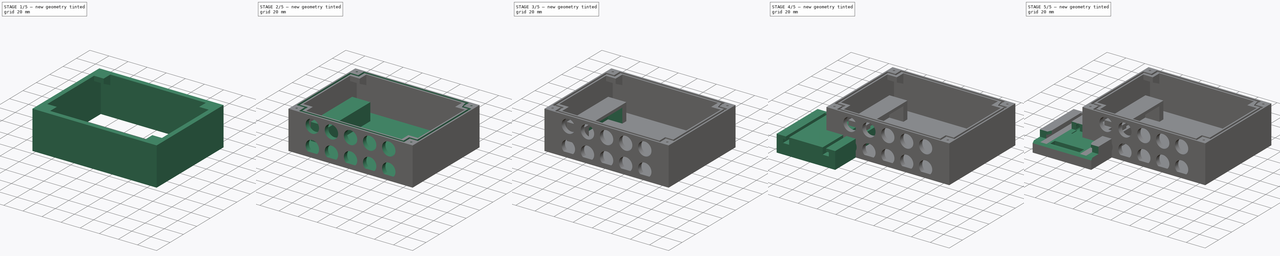
[diagram: build sequence overview — one tinted view per stage of 5, left to right]
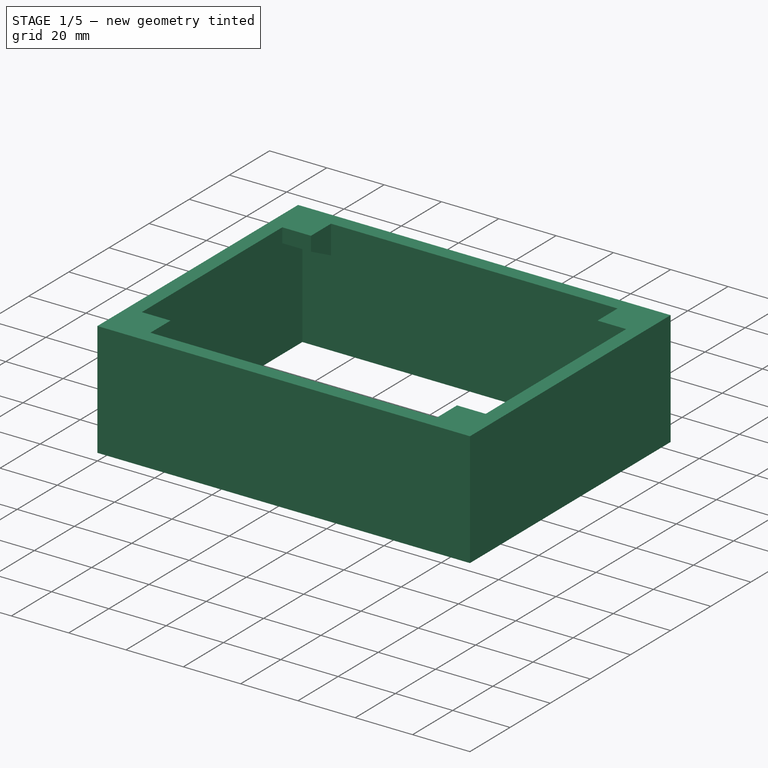
[diagram: stage 1 of 5 — iso view after this stage's code; geometry added in this stage tinted green]
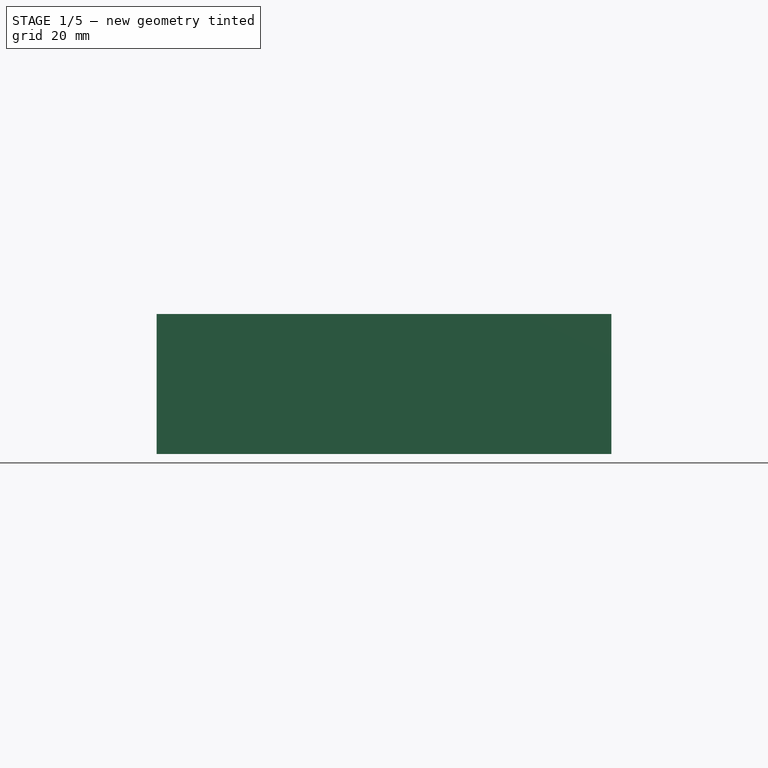
[diagram: stage 1 of 5 — front view after this stage's code; geometry added in this stage tinted green]
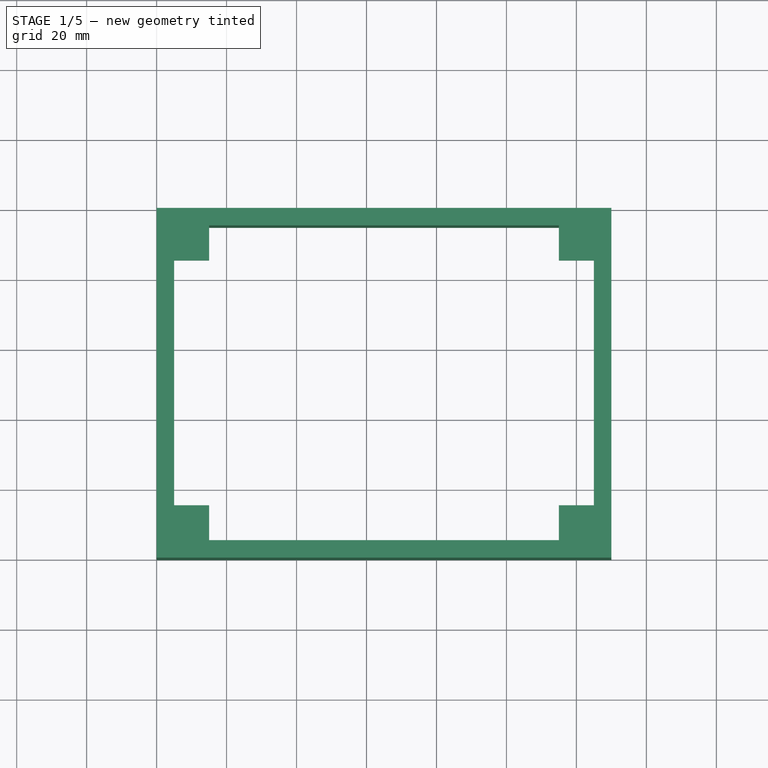
[diagram: stage 1 of 5 — top view after this stage's code; geometry added in this stage tinted green]
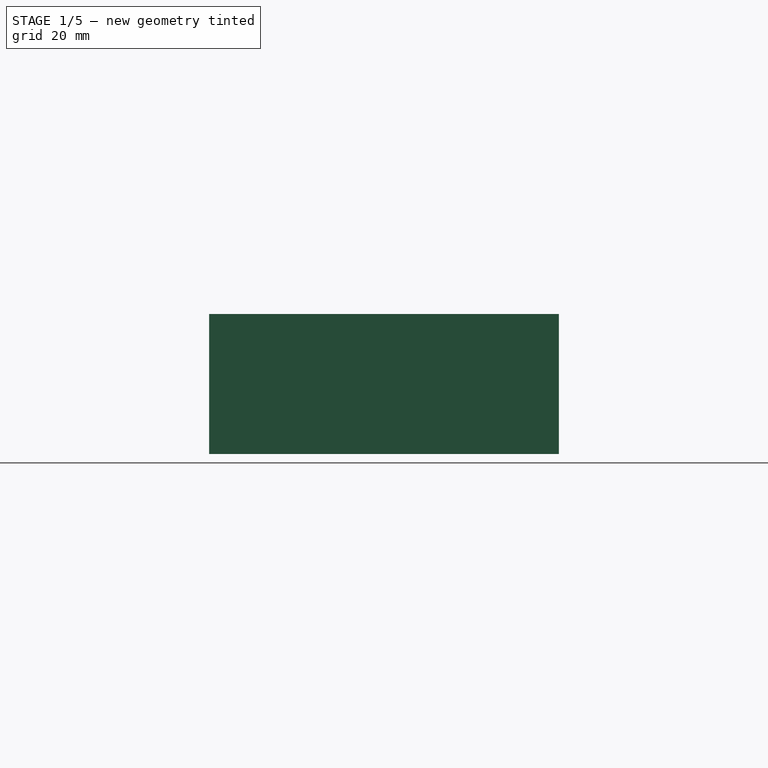
[diagram: stage 1 of 5 — right view after this stage's code; geometry added in this stage tinted green]
FCSTD DOCUMENT  (FreeCAD 0.19R20943 (Git))
Label: case
License: All rights reserved
LicenseURL: http://en.wikipedia.org/wiki/All_rights_reserved
objects: App::Part×119, Part::Feature×118, Sketcher::SketchObject×26, PartDesign::Pocket×16, PartDesign::Pad×11, PartDesign::Body×5, App::Link×3, App::DocumentObjectGroup×2, PartDesign::CoordinateSystem×1, App::FeaturePython×1
note: 204 computed .brp shape members not serialized (recipe doc carries the construction recipe); baked Part::Feature solids carry a one-line shape summary decoded from their .brp

FEATURE [Sketcher::SketchObject] Sketch
  MapMode = 5
  Support = -> [XY_Plane]
  sketch-geometry (8):
    g0: LineSegment StartX=0 StartY=0 StartZ=0 EndX=130 EndY=0 EndZ=0
    g1: LineSegment StartX=130 StartY=0 StartZ=0 EndX=130 EndY=100 EndZ=0
    g2: LineSegment StartX=130 StartY=100 StartZ=0 EndX=0 EndY=100 EndZ=0
    g3: LineSegment StartX=0 StartY=100 StartZ=0 EndX=0 EndY=0 EndZ=0
    g4: LineSegment StartX=5 StartY=5 StartZ=0 EndX=125 EndY=5 EndZ=0
    g5: LineSegment StartX=125 StartY=5 StartZ=0 EndX=125 EndY=95 EndZ=0
    g6: LineSegment StartX=125 StartY=95 StartZ=0 EndX=5 EndY=95 EndZ=0
    g7: LineSegment StartX=5 StartY=95 StartZ=0 EndX=5 EndY=5 EndZ=0
  constraints (21):
    c: Coincident(g0,g1)
    c: Coincident(g1,g2)
    c: Coincident(g2,g3)
    c: Coincident(g3,g0)
    c: Horizontal(g0)
    c: Horizontal(g2)
    c: Vertical(g1)
    c: Vertical(g3)
    c: Coincident(g-1,g0)
    c: DistanceX(g2,g2) = 130
    c: DistanceY(g1,g1) = 100
    c: Coincident(g4,g5)
    c: Coincident(g5,g6)
    c: Coincident(g6,g7)
    c: Coincident(g7,g4)
    c: Horizontal(g4)
    c: Horizontal(g6)
    c: Vertical(g5)
    c: Vertical(g7)
    c: DistanceX(g6,g6) = 120
    c: DistanceY(g5,g5) = 90
FEATURE [PartDesign::Pad] Pad
  AllowMultiFace = false
  Length = 40
  Length2 = 100
  Profile = -> Sketch
  Type = 0
FEATURE [Sketcher::SketchObject] Sketch004
  MapMode = 5
  Placement = pos=(5,0,0) rot=(0.57735,0.57735,0.57735;2.0944rad)
  Support = -> [Pad]
  sketch-geometry (8):
    g0: LineSegment StartX=5 StartY=40 StartZ=0 EndX=15 EndY=40 EndZ=0
    g1: LineSegment StartX=15 StartY=40 StartZ=0 EndX=15 EndY=35 EndZ=0
    g2: LineSegment StartX=15 StartY=35 StartZ=0 EndX=5 EndY=35 EndZ=0
    g3: LineSegment StartX=5 StartY=35 StartZ=0 EndX=5 EndY=40 EndZ=0
    g4: LineSegment StartX=85 StartY=40 StartZ=0 EndX=95 EndY=40 EndZ=0
    g5: LineSegment StartX=95 StartY=40 StartZ=0 EndX=95 EndY=35 EndZ=0
    g6: LineSegment StartX=95 StartY=35 StartZ=0 EndX=85 EndY=35 EndZ=0
    g7: LineSegment StartX=85 StartY=35 StartZ=0 EndX=85 EndY=40 EndZ=0
  constraints (21):
    c: Coincident(g0,g1)
    c: Coincident(g1,g2)
    c: Coincident(g2,g3)
    c: Coincident(g3,g0)
    c: Horizontal(g0)
    c: Horizontal(g2)
    c: Vertical(g1)
    c: Vertical(g3)
    c: Coincident(g4,g5)
    c: Coincident(g5,g6)
    c: Coincident(g6,g7)
    c: Coincident(g7,g4)
    c: Horizontal(g4)
    c: Horizontal(g6)
    c: Vertical(g5)
    c: Vertical(g7)
    c: Equal(g4,g0)
    c: Equal(g1,g5)
    c: DistanceY(g3,g3) = 5
    c: DistanceX(g0,g4) = 70
    c: DistanceX(g0,g0) = 10
FEATURE [PartDesign::Pad] Pad003
  AllowMultiFace = false
  BaseFeature = -> Pad
  Length = 10
  Length2 = 100
  Profile = -> Sketch004
  Type = 0
FEATURE [Sketcher::SketchObject] Sketch005
  MapMode = 5
  Placement = pos=(125,0,0) rot=(0.57735,-0.57735,-0.57735;2.0944rad)
  Support = -> [Pad003]
  sketch-geometry (8):
    g0: LineSegment StartX=-95 StartY=40 StartZ=0 EndX=-85 EndY=40 EndZ=0
    g1: LineSegment StartX=-85 StartY=40 StartZ=0 EndX=-85 EndY=35 EndZ=0
    g2: LineSegment StartX=-85 StartY=35 StartZ=0 EndX=-95 EndY=35 EndZ=0
    g3: LineSegment StartX=-95 StartY=35 StartZ=0 EndX=-95 EndY=40 EndZ=0
    g4: LineSegment StartX=-15 StartY=40 StartZ=0 EndX=-5 EndY=40 EndZ=0
    g5: LineSegment StartX=-5 StartY=40 StartZ=0 EndX=-5 EndY=35 EndZ=0
    g6: LineSegment StartX=-5 StartY=35 StartZ=0 EndX=-15 EndY=35 EndZ=0
    g7: LineSegment StartX=-15 StartY=35 StartZ=0 EndX=-15 EndY=40 EndZ=0
  constraints (21):
    c: Coincident(g0,g1)
    c: Coincident(g1,g2)
    c: Coincident(g2,g3)
    c: Coincident(g3,g0)
    c: Horizontal(g0)
    c: Horizontal(g2)
    c: Vertical(g1)
    c: Vertical(g3)
    c: Coincident(g4,g5)
    c: Coincident(g5,g6)
    c: Coincident(g6,g7)
    c: Coincident(g7,g4)
    c: Horizontal(g4)
    c: Horizontal(g6)
    c: Vertical(g5)
    c: Vertical(g7)
    c: Equal(g0,g4)
    c: Equal(g7,g1)
    c: DistanceX(g0,g0) = 10
    c: DistanceY(g1,g1) = 5
    c: DistanceX(g0,g4) = 70
FEATURE [PartDesign::Pad] Pad004
  AllowMultiFace = false
  BaseFeature = -> Pad003
  Length = 10
  Length2 = 100
  Profile = -> Sketch005
  Type = 0
FEATURE [Sketcher::SketchObject] Sketch006
  MapMode = 5
  Placement = pos=(5,0,0) rot=(0.57735,0.57735,0.57735;2.0944rad)
  Support = -> [Pad004]
  sketch-geometry (6):
    g0: LineSegment StartX=5 StartY=30 StartZ=0 EndX=5 EndY=35 EndZ=0
    g1: LineSegment StartX=5 StartY=35 StartZ=0 EndX=15 EndY=35 EndZ=0
    g2: LineSegment StartX=85 StartY=35 StartZ=0 EndX=95 EndY=35 EndZ=0
    g3: LineSegment StartX=95 StartY=35 StartZ=0 EndX=95 EndY=30 EndZ=0
    g4: LineSegment StartX=95 StartY=30 StartZ=0 EndX=85 EndY=35 EndZ=0
    g5: LineSegment StartX=5 StartY=30 StartZ=0 EndX=15 EndY=35 EndZ=0
  constraints (13):
    c: Coincident(g0,g1)
    c: Coincident(g2,g3)
    c: Coincident(g3,g4)
    c: Horizontal(g2)
    c: Horizontal(g1)
    c: Vertical(g0)
    c: Vertical(g3)
    c: Coincident(g5,g1)
    c: Equal(g2,g1)
    c: Equal(g0,g3)
    c: DistanceX(g1,g1) = 10
    c: DistanceX(g1,g2) = 70
    c: DistanceY(g0,g0) = 5
FEATURE [PartDesign::Pad] Pad005
  AllowMultiFace = false
  BaseFeature = -> Pad004
  Length = 10
  Length2 = 100
  Profile = -> Sketch006
  Type = 0
FEATURE [Sketcher::SketchObject] Sketch007
  MapMode = 5
  Placement = pos=(125,0,0) rot=(0.57735,-0.57735,-0.57735;2.0944rad)
  Support = -> [Pad005]
  sketch-geometry (7):
    g0: LineSegment StartX=0 StartY=35 StartZ=0 EndX=-5 EndY=35 EndZ=0
    g1: LineSegment StartX=-5 StartY=35 StartZ=0 EndX=-5 EndY=30 EndZ=0
    g2: LineSegment StartX=-5 StartY=30 StartZ=0 EndX=-15 EndY=35 EndZ=0
    g3: LineSegment StartX=-85 StartY=35 StartZ=0 EndX=-95 EndY=35 EndZ=0
    g4: LineSegment StartX=-95 StartY=35 StartZ=0 EndX=-95 EndY=30 EndZ=0
    g5: LineSegment StartX=-95 StartY=30 StartZ=0 EndX=-85 EndY=35 EndZ=0
    g6: LineSegment StartX=-15 StartY=35 StartZ=0 EndX=-5 EndY=35 EndZ=0
  constraints (18):
    c: Coincident(g0,g1)
    c: Coincident(g1,g2)
    c: Coincident(g3,g4)
    c: Coincident(g4,g5)
    c: Coincident(g6,g0)
    c: Coincident(g2,g6)
    c: Vertical(g1)
    c: Vertical(g4)
    c: Horizontal(g6)
    c: Horizontal(g3)
    c: Horizontal(g0)
    c: Equal(g6,g3)
    c: Equal(g4,g1)
    c: DistanceY(g-1,g0) = 35
    c: DistanceY(g1,g1) = 5
    c: DistanceX(g0,g0) = 5
    c: DistanceX(g6,g6) = 10
    c: DistanceX(g3,g2) = 70
FEATURE [PartDesign::Pad] Pad006
  AllowMultiFace = false
  BaseFeature = -> Pad005
  Length = 10
  Length2 = 100
  Profile = -> Sketch007
  Type = 0
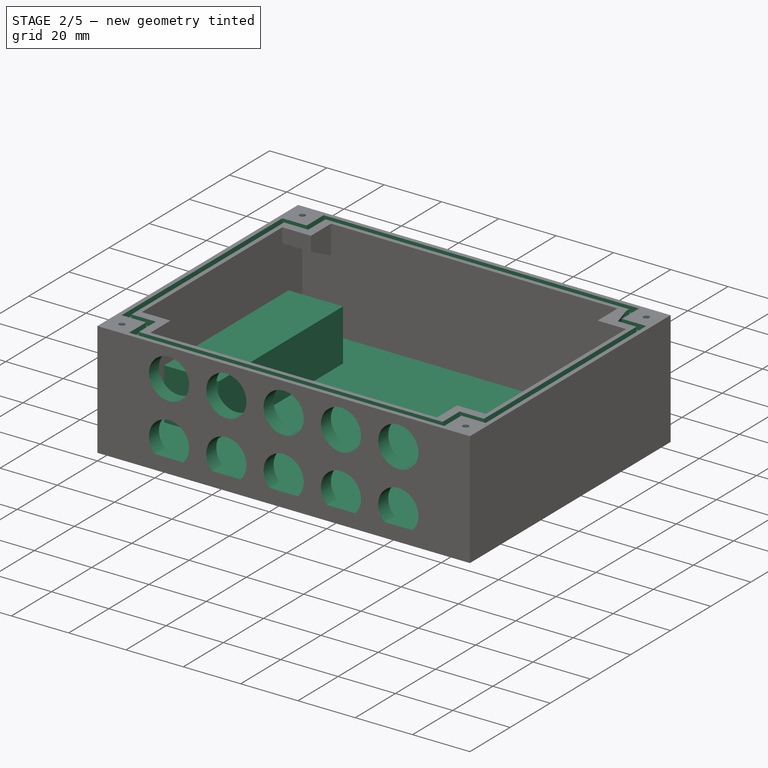
[diagram: stage 2 of 5 — iso view after this stage's code; geometry added in this stage tinted green]
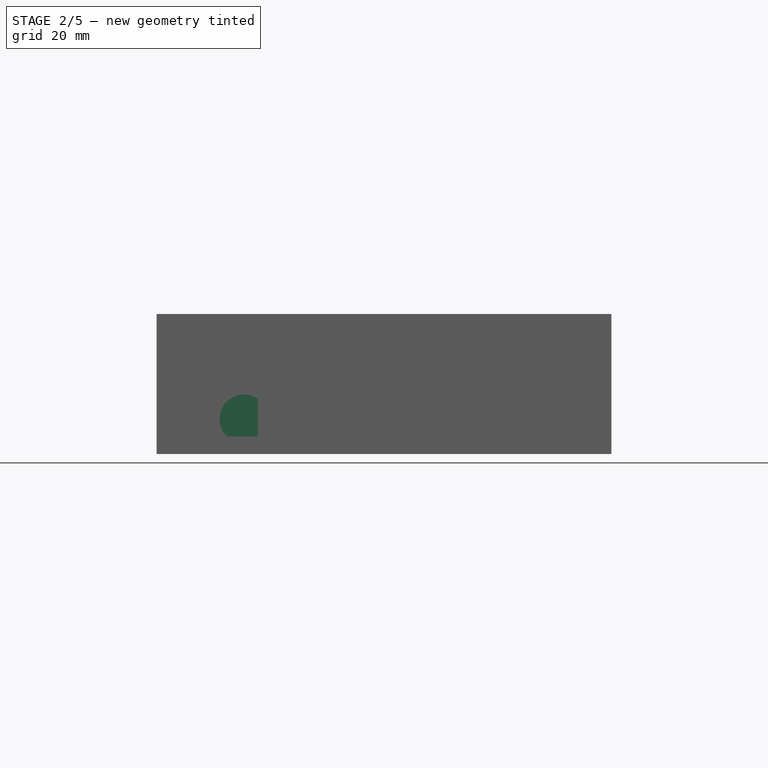
[diagram: stage 2 of 5 — front view after this stage's code; geometry added in this stage tinted green]
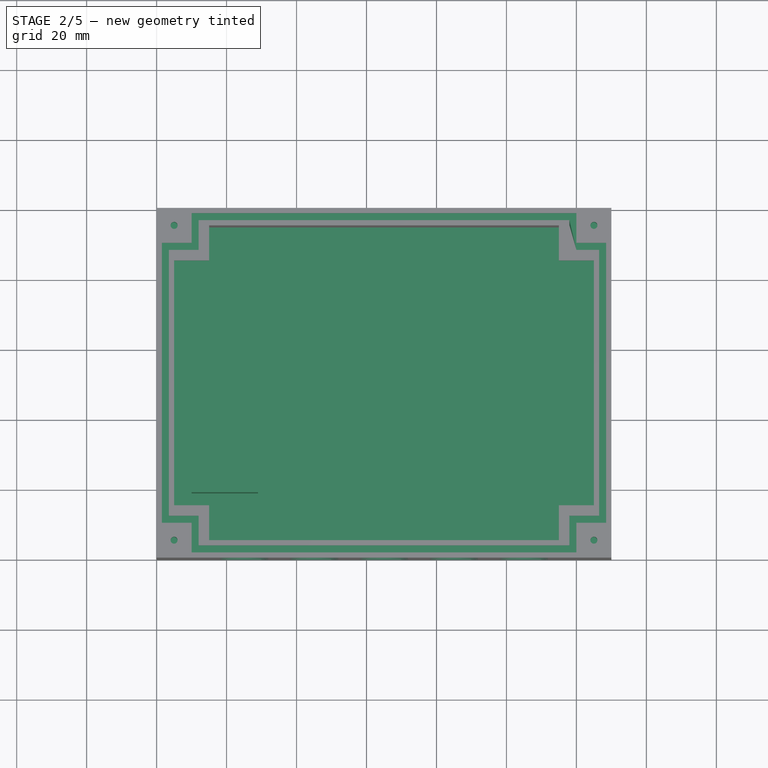
[diagram: stage 2 of 5 — top view after this stage's code; geometry added in this stage tinted green]
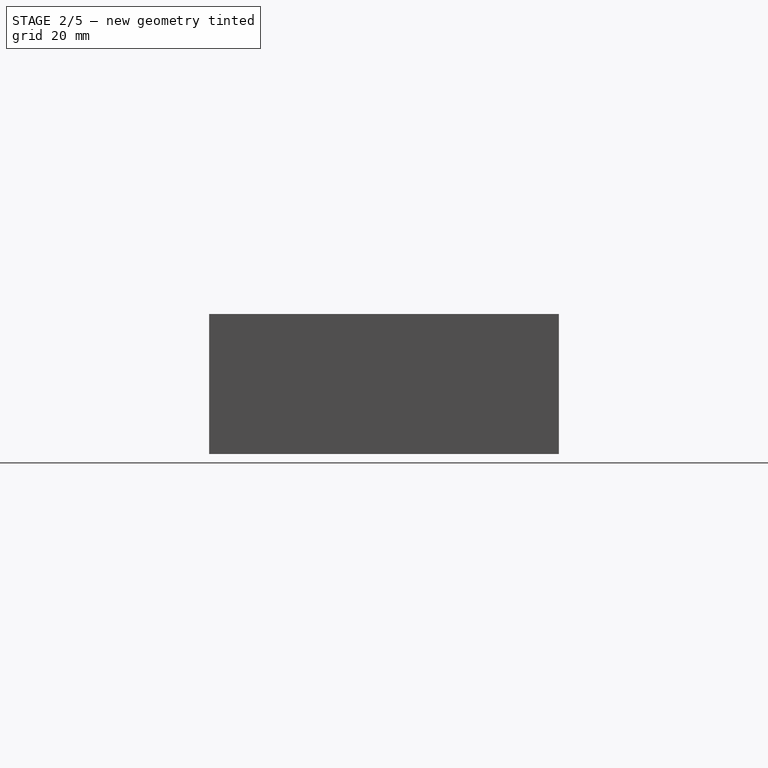
[diagram: stage 2 of 5 — right view after this stage's code; geometry added in this stage tinted green]
FEATURE [Sketcher::SketchObject] Sketch009
  MapMode = 5
  Placement = pos=(0,0,40) rot=(0,0,1;0rad)
  sketch-geometry (4):
    g0: Circle CenterX=5 CenterY=95 CenterZ=0 NormalX=0 NormalY=0 NormalZ=1 AngleXU=0 Radius=1
    g1: Circle CenterX=125 CenterY=95 CenterZ=0 NormalX=0 NormalY=0 NormalZ=1 AngleXU=0 Radius=1
    g2: Circle CenterX=125 CenterY=5 CenterZ=0 NormalX=0 NormalY=0 NormalZ=1 AngleXU=0 Radius=1
    g3: Circle CenterX=5 CenterY=5 CenterZ=0 NormalX=0 NormalY=0 NormalZ=1 AngleXU=0 Radius=1
  constraints (6):
    c: DistanceY(g3,g0) = 90
    c: DistanceX(g0,g1) = 120
    c: Equal(g0,g1)
    c: Equal(g0,g2)
    c: Equal(g0,g3)
    c: Radius(g0) = 1
FEATURE [PartDesign::Pocket] Pocket002
  AllowMultiFace = false
  BaseFeature = -> Pad006
  Length = 7
  Length2 = 100
  Profile = -> Sketch009
  Type = 0
FEATURE [Sketcher::SketchObject] Sketch011
  MapMode = 5
  Placement = pos=(0,0,0) rot=(1,0,0;1.5708rad)
  sketch-geometry (10):
    g0: Circle CenterX=25 CenterY=30 CenterZ=0 NormalX=0 NormalY=0 NormalZ=1 AngleXU=0 Radius=7
    g1: Circle CenterX=45 CenterY=30 CenterZ=0 NormalX=0 NormalY=0 NormalZ=1 AngleXU=0 Radius=7
    g2: Circle CenterX=45 CenterY=10 CenterZ=0 NormalX=0 NormalY=0 NormalZ=1 AngleXU=0 Radius=7
    g3: Circle CenterX=25 CenterY=10 CenterZ=0 NormalX=0 NormalY=0 NormalZ=1 AngleXU=0 Radius=7
    g4: Circle CenterX=65 CenterY=30 CenterZ=0 NormalX=0 NormalY=0 NormalZ=1 AngleXU=0 Radius=7
    g5: Circle CenterX=85 CenterY=30 CenterZ=0 NormalX=0 NormalY=0 NormalZ=1 AngleXU=0 Radius=7
    g6: Circle CenterX=85 CenterY=10 CenterZ=0 NormalX=0 NormalY=0 NormalZ=1 AngleXU=0 Radius=7
    g7: Circle CenterX=65 CenterY=10 CenterZ=0 NormalX=0 NormalY=0 NormalZ=1 AngleXU=0 Radius=7
    g8: Circle CenterX=105 CenterY=10 CenterZ=0 NormalX=0 NormalY=0 NormalZ=1 AngleXU=0 Radius=7
    g9: Circle CenterX=105 CenterY=30 CenterZ=0 NormalX=0 NormalY=0 NormalZ=1 AngleXU=0 Radius=7
  constraints (12):
    c: Equal(g0,g1)
    c: Equal(g1,g2)
    c: Equal(g2,g3)
    c: Equal(g4,g5)
    c: Equal(g3,g7)
    c: Equal(g2,g6)
    c: Equal(g1,g5)
    c: Radius(g0) = 7
    c: DistanceX(g0,g1) = 20
    c: DistanceY(g6,g5) = 20
    c: Equal(g6,g8)
    c: Equal(g9,g8)
FEATURE [PartDesign::Pocket] Pocket004
  AllowMultiFace = false
  BaseFeature = -> Pocket002
  Length = 5
  Length2 = 100
  Profile = -> Sketch011
  Type = 0
FEATURE [PartDesign::Body] Body001  label="bottom"
  Group = -> [Sketch001,Pad001,Sketch002,Pad002,Sketch003,Pocket,Sketch012,Pocket005,Sketch013,Pocket006]
  Origin = -> Origin001
  Tip = -> Pocket006
FEATURE [PartDesign::Pocket] Pocket007
  AllowMultiFace = false
  BaseFeature = -> Pocket004
  Length = 1
  Length2 = 100
  Profile = -> Sketch009
  Type = 0
FEATURE [Sketcher::SketchObject] Sketch014
  MapMode = 5
  Placement = pos=(0,0,40) rot=(0,0,1;0rad)
  Support = -> [Pocket004]
  sketch-geometry (25):
    g0: LineSegment StartX=12 StartY=88 StartZ=0 EndX=12 EndY=96.5 EndZ=0
    g1: LineSegment StartX=12 StartY=96.5 StartZ=0 EndX=118 EndY=96.5 EndZ=0
    g2: LineSegment StartX=118 StartY=96.5 StartZ=0 EndX=118 EndY=88 EndZ=0
    g3: LineSegment StartX=118 StartY=88 StartZ=0 EndX=126.5 EndY=88 EndZ=0
    g4: LineSegment StartX=126.5 StartY=88 StartZ=0 EndX=126.5 EndY=12 EndZ=0
    g5: LineSegment StartX=126.5 StartY=12 StartZ=0 EndX=118 EndY=12 EndZ=0
    g6: LineSegment StartX=118 StartY=12 StartZ=0 EndX=118 EndY=3.5 EndZ=0
    g7: LineSegment StartX=118 StartY=3.5 StartZ=0 EndX=12 EndY=3.5 EndZ=0
    g8: LineSegment StartX=12 StartY=3.5 StartZ=0 EndX=12 EndY=12 EndZ=0
    g9: LineSegment StartX=12 StartY=12 StartZ=0 EndX=3.5 EndY=12 EndZ=0
    g10: LineSegment StartX=3.5 StartY=12 StartZ=0 EndX=3.5 EndY=88 EndZ=0
    g11: LineSegment StartX=3.5 StartY=88 StartZ=0 EndX=12 EndY=88 EndZ=0
    g12: LineSegment StartX=1.5 StartY=10 StartZ=0 EndX=1.5 EndY=90 EndZ=0
    g13: LineSegment StartX=1.5 StartY=90 StartZ=0 EndX=10 EndY=90 EndZ=0
    g14: LineSegment StartX=10 StartY=90 StartZ=0 EndX=10 EndY=98.5 EndZ=0
    g15: LineSegment StartX=10 StartY=98.5 StartZ=0 EndX=120 EndY=98.5 EndZ=0
    g16: LineSegment StartX=120 StartY=98.5 StartZ=0 EndX=120 EndY=90 EndZ=0
    g17: LineSegment StartX=120 StartY=90 StartZ=0 EndX=128.5 EndY=90 EndZ=0
    g18: LineSegment StartX=128.5 StartY=90 StartZ=0 EndX=128.5 EndY=10 EndZ=0
    g19: LineSegment StartX=128.5 StartY=10 StartZ=0 EndX=120 EndY=10 EndZ=0
    g20: LineSegment StartX=120 StartY=10 StartZ=0 EndX=120 EndY=1.5 EndZ=0
    g21: LineSegment StartX=120 StartY=1.5 StartZ=0 EndX=10 EndY=1.5 EndZ=0
    g22: LineSegment StartX=10 StartY=1.5 StartZ=0 EndX=10 EndY=10 EndZ=0
    g23: LineSegment StartX=10 StartY=10 StartZ=0 EndX=1.5 EndY=10 EndZ=0
    g24: LineSegment StartX=120 StartY=88 StartZ=0 EndX=118 EndY=88 EndZ=0
  constraints (72):
    c: Coincident(g0,g1)
    c: Coincident(g1,g2)
    c: Coincident(g2,g3)
    c: Coincident(g3,g4)
    c: Coincident(g4,g5)
    c: Coincident(g5,g6)
    c: Coincident(g6,g7)
    c: Coincident(g7,g8)
    c: Coincident(g8,g9)
    c: Coincident(g9,g10)
    c: Coincident(g10,g11)
    c: Coincident(g11,g0)
    c: Vertical(g0)
    c: Vertical(g10)
    c: Vertical(g8)
    c: Vertical(g6)
    c: Vertical(g4)
    c: Horizontal(g1)
    c: Horizontal(g3)
    c: Horizontal(g5)
    c: Horizontal(g7)
    c: Horizontal(g9)
    c: Equal(g1,g7)
    c: Equal(g10,g4)
    c: Equal(g5,g6)
    c: Equal(g3,g2)
    c: Equal(g3,g5)
    c: Equal(g9,g8)
    c: Equal(g0,g11)
    c: Equal(g11,g9)
    c: Equal(g2,g0)
    c: Coincident(g12,g13)
    c: Coincident(g13,g14)
    c: Coincident(g14,g15)
    c: Coincident(g15,g16)
    c: Coincident(g16,g17)
    c: Coincident(g17,g18)
    c: Coincident(g18,g19)
    c: Coincident(g19,g20)
    c: Coincident(g20,g21)
    c: Coincident(g21,g22)
    c: Coincident(g22,g23)
    c: Coincident(g23,g12)
    c: Horizontal(g15)
    c: Horizontal(g21)
    c: Horizontal(g19)
    c: Horizontal(g17)
    c: Horizontal(g13)
    c: Vertical(g12)
    c: Vertical(g22)
    c: Vertical(g20)
    c: Vertical(g18)
    c: Vertical(g16)
    c: Equal(g15,g21)
    c: Equal(g18,g12)
    c: Equal(g22,g20)
    c: Equal(g19,g23)
    c: Equal(g20,g19)
    c: Equal(g17,g16)
    c: Equal(g17,g19)
    c: Equal(g14,g13)
    c: Equal(g14,g16)
    c: Equal(g22,g19)
    c: DistanceY(g12,g12) = 80
    c: DistanceX(g13,g13) = 8.5
    c: DistanceX(g21,g21) = 110
    c: Horizontal(g24)
    c: DistanceY(g24,g16) = 2
    c: DistanceX(g24,g24) = 2
    c: Coincident(g2,g24)
    c: DistanceX(g7,g7) = 106
    c: DistanceY(g4,g4) = 76
FEATURE [PartDesign::Pocket] Pocket008
  AllowMultiFace = false
  BaseFeature = -> Pocket007
  Length = 2
  Length2 = 100
  Profile = -> Sketch014
  Type = 0
FEATURE [PartDesign::Body] Body012  label="battery_adapter_einhell_x-change"
  Group = -> [Sketch072,Pad012,Sketch074,Pocket059,Sketch075,Pocket060,Sketch077,Pocket062,Pocket067,Sketch076,Pocket065,Sketch080,Pocket066,Sketch081]
  Origin = -> Origin122
  Placement = pos=(60,50,50) rot=(0,0,1;1.5708rad)
  Tip = -> Pocket066
FEATURE [Sketcher::SketchObject] Sketch082
  MapMode = 5
  Support = -> [XY_Plane123]
  sketch-geometry (4):
    g0: LineSegment StartX=0 StartY=0 StartZ=0 EndX=130 EndY=0 EndZ=0
    g1: LineSegment StartX=130 StartY=0 StartZ=0 EndX=130 EndY=100 EndZ=0
    g2: LineSegment StartX=130 StartY=100 StartZ=0 EndX=0 EndY=100 EndZ=0
    g3: LineSegment StartX=0 StartY=100 StartZ=0 EndX=0 EndY=0 EndZ=0
  constraints (11):
    c: Coincident(g0,g1)
    c: Coincident(g1,g2)
    c: Coincident(g2,g3)
    c: Coincident(g3,g0)
    c: Horizontal(g0)
    c: Horizontal(g2)
    c: Vertical(g1)
    c: Vertical(g3)
    c: DistanceY(g1,g1) = 100
    c: DistanceX(g2,g2) = 130
    c: Coincident(g-1,g0)
FEATURE [PartDesign::Pad] Pad013  label="top001"
  AllowMultiFace = false
  Length = 5
  Length2 = 100
  Profile = -> Sketch082
  Type = 0
FEATURE [Sketcher::SketchObject] Sketch083
  MapMode = 5
  Placement = pos=(0,0,5) rot=(0,0,1;0rad)
  Support = -> [Pad013]
  sketch-geometry (4):
    g0: LineSegment StartX=10 StartY=81 StartZ=0 EndX=29 EndY=81 EndZ=0
    g1: LineSegment StartX=29 StartY=81 StartZ=0 EndX=29 EndY=19 EndZ=0
    g2: LineSegment StartX=29 StartY=19 StartZ=0 EndX=10 EndY=19 EndZ=0
    g3: LineSegment StartX=10 StartY=19 StartZ=0 EndX=10 EndY=81 EndZ=0
  constraints (10):
    c: Coincident(g0,g1)
    c: Coincident(g1,g2)
    c: Coincident(g2,g3)
    c: Coincident(g3,g0)
    c: Horizontal(g0)
    c: Horizontal(g2)
    c: Vertical(g1)
    c: Vertical(g3)
    c: DistanceX(g0,g0) = 19
    c: DistanceY(g1,g1) = 62
FEATURE [PartDesign::Pad] Pad014
  AllowMultiFace = false
  BaseFeature = -> Pad013
  Length = 18
  Length2 = 100
  Profile = -> Sketch083
  Type = 0
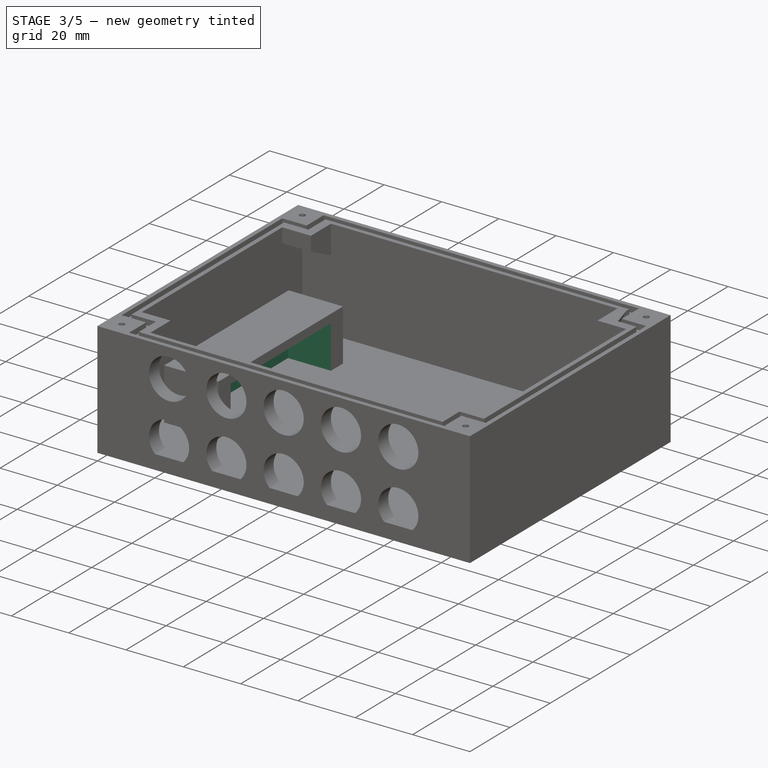
[diagram: stage 3 of 5 — iso view after this stage's code; geometry added in this stage tinted green]
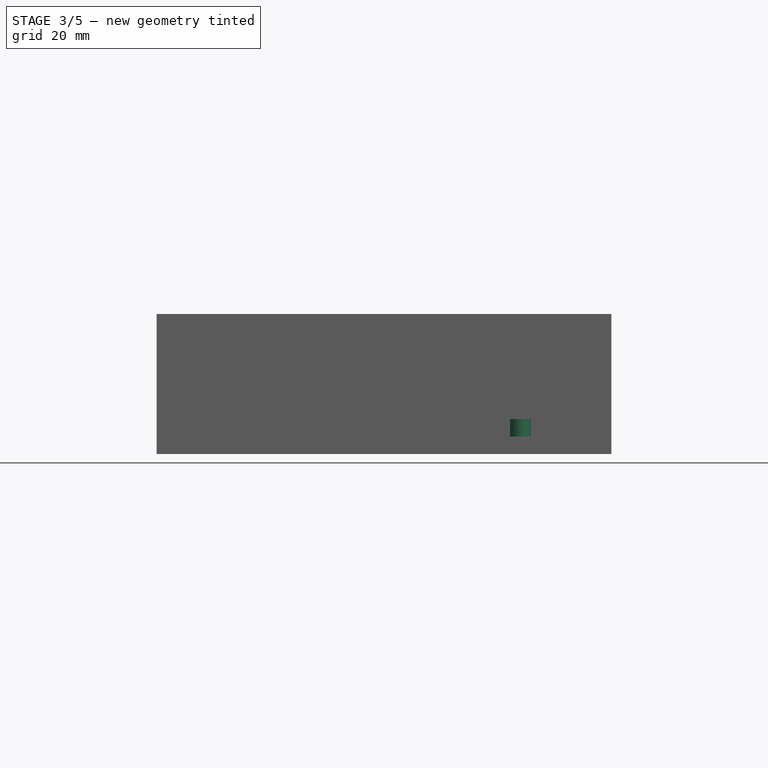
[diagram: stage 3 of 5 — front view after this stage's code; geometry added in this stage tinted green]
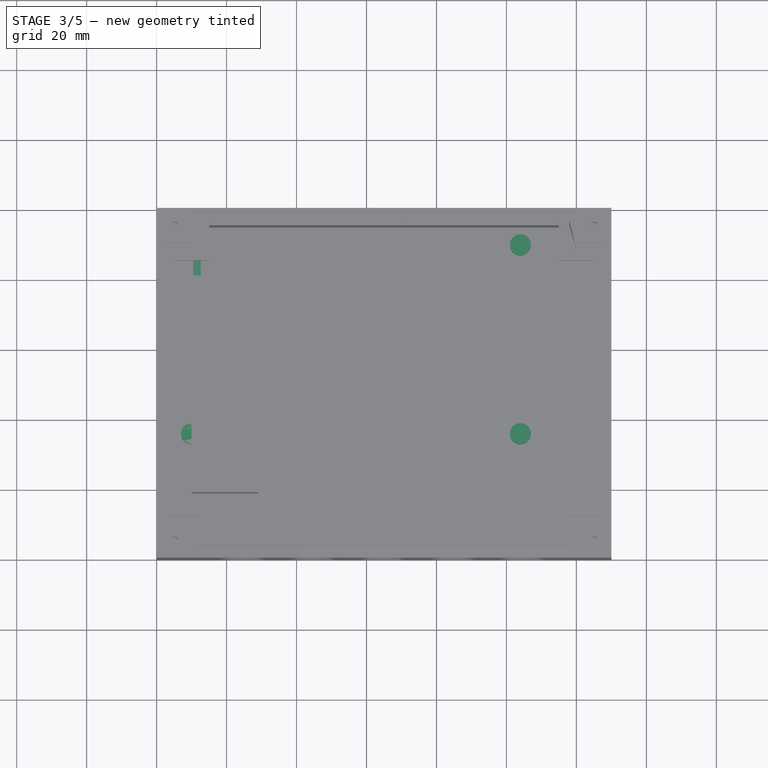
[diagram: stage 3 of 5 — top view after this stage's code; geometry added in this stage tinted green]
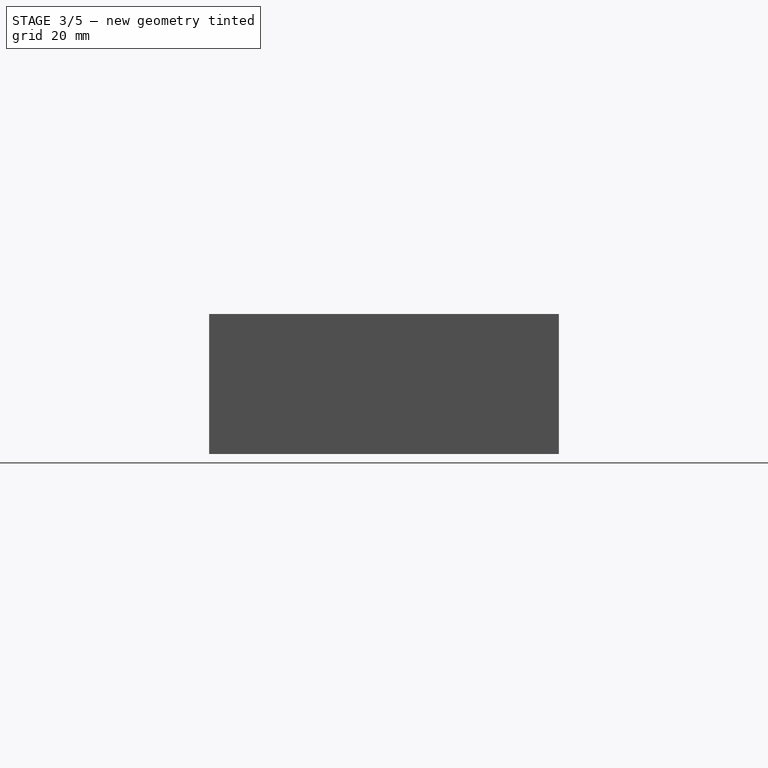
[diagram: stage 3 of 5 — right view after this stage's code; geometry added in this stage tinted green]
FEATURE [Sketcher::SketchObject] Sketch001
  MapMode = 5
  Support = -> [XY_Plane001]
  sketch-geometry (4):
    g0: LineSegment StartX=0 StartY=0 StartZ=0 EndX=130 EndY=0 EndZ=0
    g1: LineSegment StartX=130 StartY=0 StartZ=0 EndX=130 EndY=100 EndZ=0
    g2: LineSegment StartX=130 StartY=100 StartZ=0 EndX=0 EndY=100 EndZ=0
    g3: LineSegment StartX=0 StartY=100 StartZ=0 EndX=0 EndY=0 EndZ=0
  constraints (11):
    c: Coincident(g0,g1)
    c: Coincident(g1,g2)
    c: Coincident(g2,g3)
    c: Coincident(g3,g0)
    c: Horizontal(g0)
    c: Horizontal(g2)
    c: Vertical(g1)
    c: Vertical(g3)
    c: DistanceX(g2,g2) = 130
    c: DistanceY(g1,g1) = 100
    c: Coincident(g-1,g0)
FEATURE [PartDesign::Pad] Pad001
  AllowMultiFace = false
  Length = 5
  Length2 = 100
  Profile = -> Sketch001
  Type = 0
FEATURE [Sketcher::SketchObject] Sketch002
  MapMode = 5
  Placement = pos=(0,0,5) rot=(0,0,1;0rad)
  Support = -> [Pad001]
  sketch-geometry (4):
    g0: Circle CenterX=10 CenterY=90 CenterZ=0 NormalX=0 NormalY=0 NormalZ=1 AngleXU=0 Radius=3
    g1: Circle CenterX=10 CenterY=36 CenterZ=0 NormalX=0 NormalY=0 NormalZ=1 AngleXU=0 Radius=3
    g2: Circle CenterX=104 CenterY=90 CenterZ=0 NormalX=0 NormalY=0 NormalZ=1 AngleXU=0 Radius=3
    g3: Circle CenterX=104 CenterY=36 CenterZ=0 NormalX=0 NormalY=0 NormalZ=1 AngleXU=0 Radius=3
  constraints (6):
    c: DistanceX(g0,g2) = 94
    c: DistanceY(g3,g2) = 54
    c: Equal(g1,g0)
    c: Equal(g2,g1)
    c: Equal(g3,g2)
    c: Radius(g0) = 3
FEATURE [PartDesign::Pad] Pad002
  AllowMultiFace = false
  BaseFeature = -> Pad001
  Length = 5
  Length2 = 100
  Profile = -> Sketch002
  Type = 0
FEATURE [Sketcher::SketchObject] Sketch084
  MapMode = 5
  Placement = pos=(0,0,0) rot=(1,0,0;3.14159rad)
  Support = -> [Pad014]
  sketch-geometry (4):
    g0: LineSegment StartX=14 StartY=-25 StartZ=0 EndX=29 EndY=-25 EndZ=0
    g1: LineSegment StartX=29 StartY=-25 StartZ=0 EndX=29 EndY=-75 EndZ=0
    g2: LineSegment StartX=29 StartY=-75 StartZ=0 EndX=14 EndY=-75 EndZ=0
    g3: LineSegment StartX=14 StartY=-75 StartZ=0 EndX=14 EndY=-25 EndZ=0
  constraints (10):
    c: Coincident(g0,g1)
    c: Coincident(g1,g2)
    c: Coincident(g2,g3)
    c: Coincident(g3,g0)
    c: Horizontal(g0)
    c: Horizontal(g2)
    c: Vertical(g1)
    c: Vertical(g3)
    c: DistanceX(g2,g2) = 15
    c: DistanceY(g3,g3) = 50
FEATURE [PartDesign::Pocket] Pocket068
  AllowMultiFace = false
  BaseFeature = -> Pad014
  Length = 20
  Length2 = 100
  Profile = -> Sketch084
  Type = 0
FEATURE [Sketcher::SketchObject] Sketch085
  MapMode = 5
  Placement = pos=(0,0,0) rot=(1,0,0;3.14159rad)
  Support = -> [Pocket068]
  sketch-geometry (4):
    g0: Circle CenterX=5 CenterY=-5 CenterZ=0 NormalX=0 NormalY=0 NormalZ=1 AngleXU=0 Radius=1.5
    g1: Circle CenterX=125 CenterY=-5 CenterZ=0 NormalX=0 NormalY=0 NormalZ=1 AngleXU=0 Radius=1.5
    g2: Circle CenterX=5 CenterY=-95 CenterZ=0 NormalX=0 NormalY=0 NormalZ=1 AngleXU=0 Radius=1.5
    g3: Circle CenterX=125 CenterY=-95 CenterZ=0 NormalX=0 NormalY=0 NormalZ=1 AngleXU=0 Radius=1.5
  constraints (6):
    c: DistanceX(g0,g1) = 120
    c: DistanceY(g3,g1) = 90
    c: Equal(g0,g1)
    c: Equal(g1,g2)
    c: Equal(g2,g3)
    c: Radius(g0) = 1.5
FEATURE [PartDesign::Pocket] Pocket069
  AllowMultiFace = false
  BaseFeature = -> Pocket068
  Length = 5
  Length2 = 100
  Profile = -> Sketch085
  Type = 0
FEATURE [Sketcher::SketchObject] Sketch086
  MapMode = 5
  Placement = pos=(0,0,5) rot=(0,0,1;0rad)
  Support = -> [Pocket069]
  sketch-geometry (4):
    g0: Circle CenterX=5 CenterY=95 CenterZ=0 NormalX=0 NormalY=0 NormalZ=1 AngleXU=0 Radius=2.5
    g1: Circle CenterX=5 CenterY=5 CenterZ=0 NormalX=0 NormalY=0 NormalZ=1 AngleXU=0 Radius=2.5
    g2: Circle CenterX=125 CenterY=5 CenterZ=0 NormalX=0 NormalY=0 NormalZ=1 AngleXU=0 Radius=2.5
    g3: Circle CenterX=125 CenterY=95 CenterZ=0 NormalX=0 NormalY=0 NormalZ=1 AngleXU=0 Radius=2.5
  constraints (6):
    c: DistanceX(g0,g3) = 120
    c: DistanceY(g1,g0) = 90
    c: Equal(g0,g1)
    c: Equal(g1,g2)
    c: Equal(g1,g3)
    c: Radius(g0) = 2.5
FEATURE [PartDesign::Pocket] Pocket070
  AllowMultiFace = false
  BaseFeature = -> Pocket069
  Length = 2
  Length2 = 100
  Profile = -> Sketch086
  Type = 0
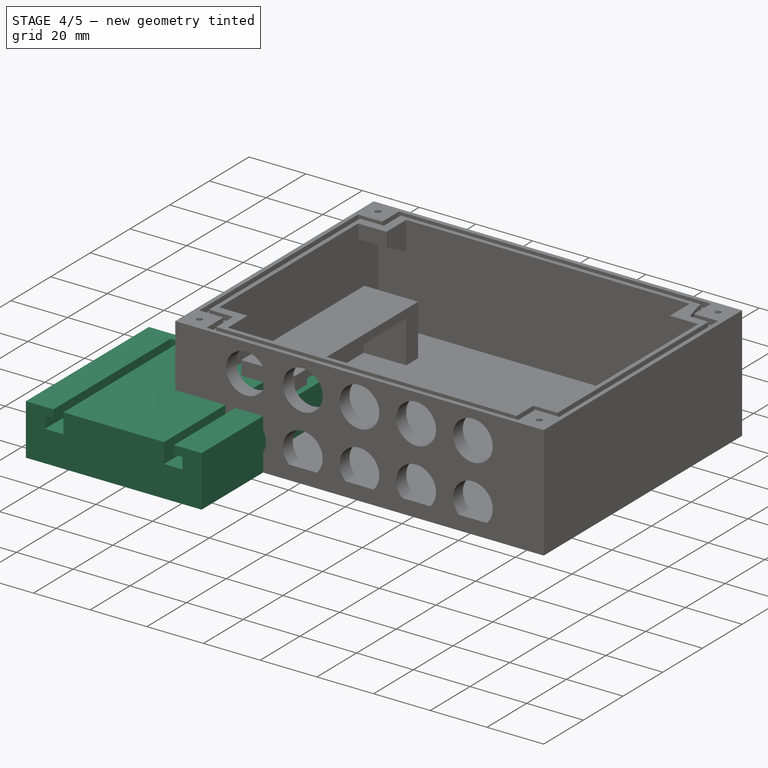
[diagram: stage 4 of 5 — iso view after this stage's code; geometry added in this stage tinted green]
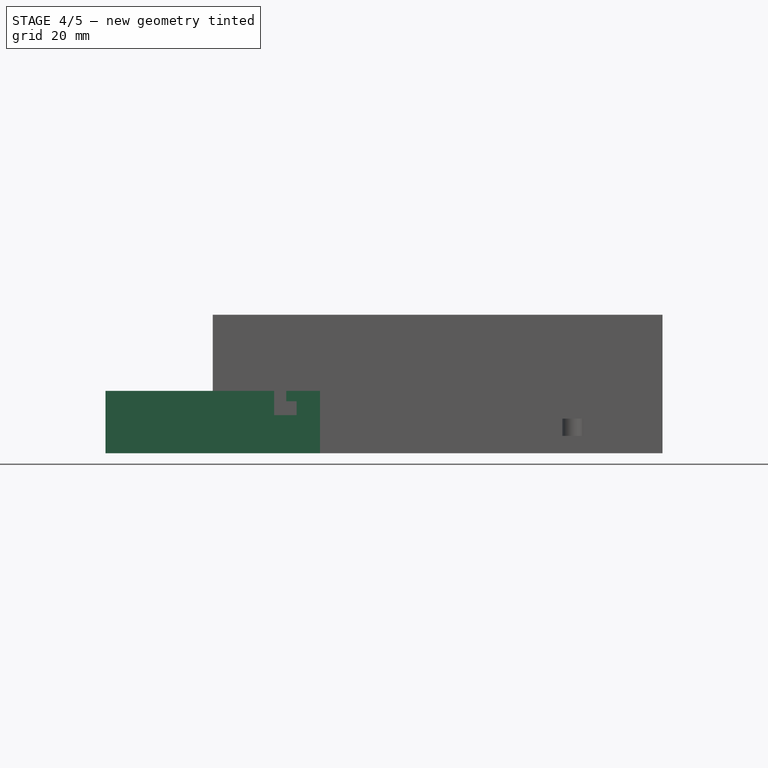
[diagram: stage 4 of 5 — front view after this stage's code; geometry added in this stage tinted green]
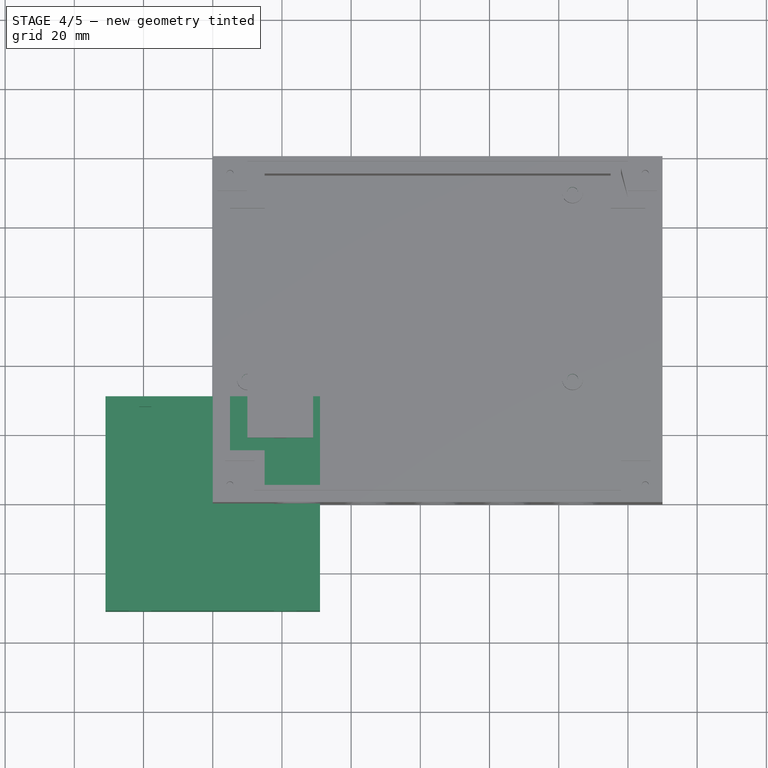
[diagram: stage 4 of 5 — top view after this stage's code; geometry added in this stage tinted green]
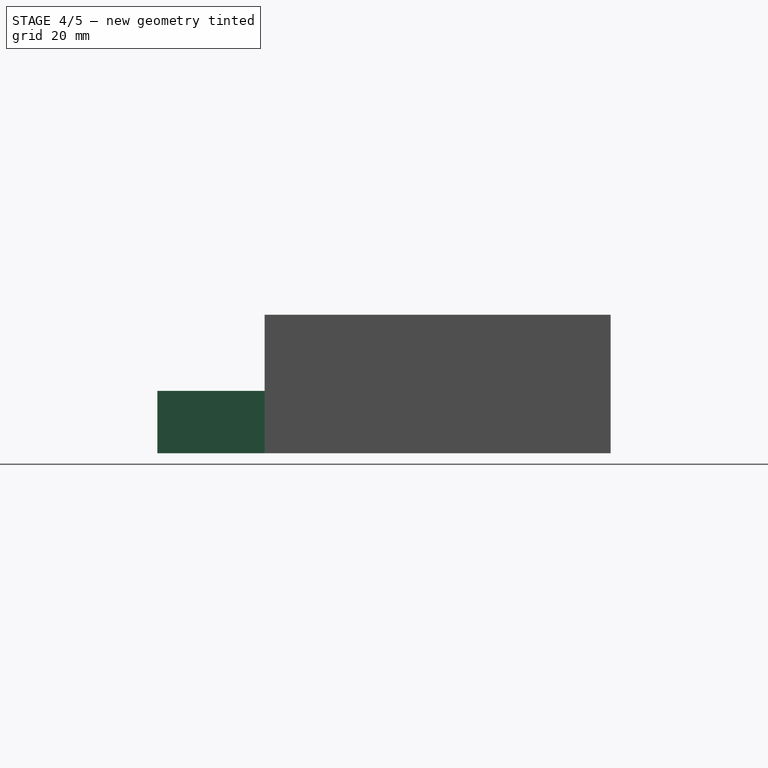
[diagram: stage 4 of 5 — right view after this stage's code; geometry added in this stage tinted green]
FEATURE [Sketcher::SketchObject] Sketch003
  MapMode = 5
  Placement = pos=(0,0,0) rot=(1,0,0;3.14159rad)
  Support = -> [Pad002]
  sketch-geometry (3):
    g0: Circle CenterX=10 CenterY=-36 CenterZ=0 NormalX=0 NormalY=0 NormalZ=1 AngleXU=0 Radius=1.6
    g1: Circle CenterX=104 CenterY=-36 CenterZ=0 NormalX=0 NormalY=0 NormalZ=1 AngleXU=0 Radius=1.6
    g2: Circle CenterX=104 CenterY=-90 CenterZ=0 NormalX=0 NormalY=0 NormalZ=1 AngleXU=0 Radius=1.6
  constraints (3):
    c: DistanceY(g2,g1) = 54
    c: Equal(g0,g1)
    c: Radius(g0) = 1.6
FEATURE [PartDesign::Pocket] Pocket
  AllowMultiFace = false
  BaseFeature = -> Pad002
  Length = 10
  Length2 = 100
  Profile = -> Sketch003
  Type = 0
FEATURE [Sketcher::SketchObject] Sketch012
  MapMode = 5
  Placement = pos=(0,0,0) rot=(1,0,0;3.14159rad)
  Support = -> [Pocket]
  sketch-geometry (21):
    g0: LineSegment StartX=107.1 StartY=-90 StartZ=0 EndX=105.55 EndY=-87.3153 EndZ=0
    g1: LineSegment StartX=105.55 StartY=-87.3153 StartZ=0 EndX=102.45 EndY=-87.3153 EndZ=0
    g2: LineSegment StartX=102.45 StartY=-87.3153 StartZ=0 EndX=100.9 EndY=-90 EndZ=0
    g3: LineSegment StartX=100.9 StartY=-90 StartZ=0 EndX=102.45 EndY=-92.6847 EndZ=0
    g4: LineSegment StartX=102.45 StartY=-92.6847 StartZ=0 EndX=105.55 EndY=-92.6847 EndZ=0
    g5: LineSegment StartX=105.55 StartY=-92.6847 StartZ=0 EndX=107.1 EndY=-90 EndZ=0
    g6: Circle [constr] CenterX=104 CenterY=-90 CenterZ=0 NormalX=0 NormalY=0 NormalZ=1 AngleXU=0 Radius=3.1
    g7: LineSegment StartX=13.1 StartY=-36 StartZ=0 EndX=11.55 EndY=-33.3153 EndZ=0
    g8: LineSegment StartX=11.55 StartY=-33.3153 StartZ=0 EndX=8.45 EndY=-33.3153 EndZ=0
    g9: LineSegment StartX=8.45 StartY=-33.3153 StartZ=0 EndX=6.9 EndY=-36 EndZ=0
    g10: LineSegment StartX=6.9 StartY=-36 StartZ=0 EndX=8.45 EndY=-38.6847 EndZ=0
    g11: LineSegment StartX=8.45 StartY=-38.6847 StartZ=0 EndX=11.55 EndY=-38.6847 EndZ=0
    g12: LineSegment StartX=11.55 StartY=-38.6847 StartZ=0 EndX=13.1 EndY=-36 EndZ=0
    g13: Circle [constr] CenterX=10 CenterY=-36 CenterZ=0 NormalX=0 NormalY=0 NormalZ=1 AngleXU=0 Radius=3.1
    g14: LineSegment StartX=107.1 StartY=-36 StartZ=0 EndX=105.55 EndY=-33.3153 EndZ=0
    g15: LineSegment StartX=105.55 StartY=-33.3153 StartZ=0 EndX=102.45 EndY=-33.3153 EndZ=0
    g16: LineSegment StartX=102.45 StartY=-33.3153 StartZ=0 EndX=100.9 EndY=-36 EndZ=0
    g17: LineSegment StartX=100.9 StartY=-36 StartZ=0 EndX=102.45 EndY=-38.6847 EndZ=0
    g18: LineSegment StartX=102.45 StartY=-38.6847 StartZ=0 EndX=105.55 EndY=-38.6847 EndZ=0
    g19: LineSegment StartX=105.55 StartY=-38.6847 StartZ=0 EndX=107.1 EndY=-36 EndZ=0
    g20: Circle [constr] CenterX=104 CenterY=-36 CenterZ=0 NormalX=0 NormalY=0 NormalZ=1 AngleXU=0 Radius=3.1
  constraints (45):
    c: Coincident(g0,g1)
    c: Coincident(g1,g2)
    c: Coincident(g2,g3)
    c: Coincident(g3,g4)
    c: Coincident(g4,g5)
    c: Coincident(g5,g0)
    c: Equal(g0, g1-g5) x5
    c: PointOnObject(g0,g6)
    c: PointOnObject(g1,g6)
    c: PointOnObject(g2,g6)
    c: PointOnObject(g3,g6)
    c: PointOnObject(g4,g6)
    c: PointOnObject(g5,g6)
    c: Horizontal(g1)
    c: DistanceX(g1,g1) = 3.1
    c: Coincident(g7,g8)
    c: Coincident(g8,g9)
    c: Coincident(g9,g10)
    c: Coincident(g10,g11)
    c: Coincident(g11,g12)
    c: Coincident(g12,g7)
    c: Equal(g7, g8-g12) x5
    c: PointOnObject(g7,g13)
    c: PointOnObject(g8,g13)
    c: PointOnObject(g9,g13)
    c: PointOnObject(g10,g13)
    c: PointOnObject(g11,g13)
    c: PointOnObject(g12,g13)
    c: Horizontal(g8)
    c: Equal(g1,g8) = 3.1
    c: Coincident(g14,g15)
    c: Coincident(g15,g16)
    c: Coincident(g16,g17)
    c: Coincident(g17,g18)
    c: Coincident(g18,g19)
    c: Coincident(g19,g14)
    c: Equal(g14, g15-g19) x5
    c: PointOnObject(g14,g20)
    c: PointOnObject(g15,g20)
    c: PointOnObject(g16,g20)
    c: PointOnObject(g17,g20)
    c: PointOnObject(g18,g20)
    c: PointOnObject(g19,g20)
    c: Horizontal(g15)
    c: Equal(g1,g15) = 3.1
FEATURE [PartDesign::Pocket] Pocket005
  AllowMultiFace = false
  BaseFeature = -> Pocket
  Length = 2.5
  Length2 = 100
  Profile = -> Sketch012
  Type = 0
FEATURE [Part::Feature] Part__Feature  label="SOLID"
  shape: bbox 1.6 x 0.8 x 0.45 mm, 26 faces (baked)
FEATURE [App::Part] R_0603
  Group = -> [Part__Feature]
  Origin = -> Origin002
  Placement = pos=(138.499,-42.926,1.65) rot=(0,0,1;1.5708rad)
FEATURE [Part::Feature] Part__Feature001  label="SOLID001"
  shape: bbox 1.6 x 0.8 x 0.8 mm, 28 faces (baked)
FEATURE [App::Part] C_0603
  Group = -> [Part__Feature001]
  Origin = -> Origin003
  Placement = pos=(139.334,-56.421,1.65) rot=(0,0,1;3.14159rad)
FEATURE [Part::Feature] Part__Feature002  label="SOLID002"
  shape: bbox 1.6 x 0.8 x 0.45 mm, 26 faces (baked)
FEATURE [App::Part] R_0603001  label="R_0604"
  Group = -> [Part__Feature002]
  Origin = -> Origin004
  Placement = pos=(108.204,-71.374,1.65) rot=(0,0,1;1.5708rad)
FEATURE [Part::Feature] Part__Feature003  label="SOLID003"
  shape: bbox 1.6 x 0.8 x 0.45 mm, 26 faces (baked)
FEATURE [App::Part] R_0603002  label="R_0605"
  Group = -> [Part__Feature003]
  Origin = -> Origin005
  Placement = pos=(108.204,-75.184,1.65) rot=(0,0,-1;1.5708rad)
FEATURE [Part::Feature] Part__Feature004  label="SOLID004"
  shape: bbox 1.6 x 0.8 x 0.8 mm, 28 faces (baked)
FEATURE [App::Part] C_0603001  label="C_0604"
  Group = -> [Part__Feature004]
  Origin = -> Origin006
  Placement = pos=(152.268,-45.5828,1.65) rot=(0,0,1;3.14159rad)
FEATURE [Part::Feature] Part__Feature005  label="SOLID005"
  shape: bbox 1.6 x 0.8 x 0.8 mm, 28 faces (baked)
FEATURE [App::Part] C_0603002  label="C_0605"
  Group = -> [Part__Feature005]
  Origin = -> Origin007
  Placement = pos=(151.755,-47.9958,1.65) rot=(0,0,1;3.14159rad)
FEATURE [Part::Feature] Part__Feature006  label="SOLID006"
  shape: bbox 2.5 x 3 x 1.2 mm, 76 faces (baked)
FEATURE [App::Part] SOT_23  label="SOT-23"
  Group = -> [Part__Feature006]
  Origin = -> Origin008
  Placement = pos=(100.33,-86.36,1.65) rot=(0,0,1;3.14159rad)
FEATURE [Part::Feature] Part__Feature007  label="SOLID007"
  shape: bbox 2.5 x 3 x 1.2 mm, 76 faces (baked)
FEATURE [App::Part] SOT_23001  label="SOT-024"
  Group = -> [Part__Feature007]
  Origin = -> Origin009
  Placement = pos=(107.95,-86.36,1.65) rot=(0,0,1;0rad)
FEATURE [Part::Feature] Part__Feature008  label="SOLID008"
  shape: bbox 1.6 x 0.8 x 0.45 mm, 26 faces (baked)
FEATURE [App::Part] R_0603003  label="R_0606"
  Group = -> [Part__Feature008]
  Origin = -> Origin010
  Placement = pos=(145.466,-45.6387,1.65) rot=(0,0,1;1.5708rad)
FEATURE [Part::Feature] Part__Feature009  label="SOLID009"
  shape: bbox 1.6 x 0.8 x 0.45 mm, 26 faces (baked)
FEATURE [App::Part] R_0603004  label="R_0607"
  Group = -> [Part__Feature009]
  Origin = -> Origin011
  Placement = pos=(144.81,-49.2658,1.65) rot=(0,0,1;1.5708rad)
FEATURE [Part::Feature] Part__Feature010  label="SOLID010"
  shape: bbox 1.6 x 0.8 x 0.45 mm, 26 faces (baked)
FEATURE [App::Part] R_0603005  label="R_0608"
  Group = -> [Part__Feature010]
  Origin = -> Origin012
  Placement = pos=(107.95,-43.18,1.65) rot=(0,0,1;3.14159rad)
FEATURE [Part::Feature] Part__Feature011  label="SOLID011"
  shape: bbox 1.6 x 0.8 x 0.45 mm, 26 faces (baked)
FEATURE [App::Part] R_0603006  label="R_0609"
  Group = -> [Part__Feature011]
  Origin = -> Origin013
  Placement = pos=(107.95,-46.99,1.65) rot=(0,0,1;0rad)
FEATURE [Part::Feature] Part__Feature012  label="SOLID012"
  shape: bbox 1.6 x 0.8 x 0.45 mm, 26 faces (baked)
FEATURE [App::Part] R_0603007  label="R_0610"
  Group = -> [Part__Feature012]
  Origin = -> Origin014
  Placement = pos=(145.476,-42.6237,1.65) rot=(0,0,-1;1.5708rad)
FEATURE [Part::Feature] Part__Feature013  label="SOLID013"
  shape: bbox 1.6 x 0.8 x 0.45 mm, 26 faces (baked)
FEATURE [App::Part] R_0603008  label="R_0611"
  Group = -> [Part__Feature013]
  Origin = -> Origin015
  Placement = pos=(120.754,-70.104,1.65) rot=(0,0,1;3.14159rad)
FEATURE [Part::Feature] Part__Feature014  label="SOLID014"
  shape: bbox 1.6 x 0.8 x 0.45 mm, 26 faces (baked)
FEATURE [App::Part] R_0603009  label="R_0612"
  Group = -> [Part__Feature014]
  Origin = -> Origin016
  Placement = pos=(113.284,-68.834,1.65) rot=(0,0,-1;1.5708rad)
FEATURE [Part::Feature] Part__Feature015  label="SOLID015"
  shape: bbox 1.6 x 0.8 x 0.45 mm, 26 faces (baked)
FEATURE [App::Part] R_0603010  label="R_0613"
  Group = -> [Part__Feature015]
  Origin = -> Origin017
  Placement = pos=(107.95,-88.9,1.65) rot=(0,0,1;0rad)
FEATURE [Part::Feature] Part__Feature016  label="SOLID016"
  shape: bbox 1.6 x 0.8 x 0.45 mm, 26 faces (baked)
FEATURE [App::Part] R_0603011  label="R_0614"
  Group = -> [Part__Feature016]
  Origin = -> Origin018
  Placement = pos=(100.33,-83.82,1.65) rot=(0,0,1;3.14159rad)
FEATURE [Part::Feature] Part__Feature017  label="SOLID017"
  shape: bbox 1.6 x 0.8 x 0.45 mm, 26 faces (baked)
FEATURE [App::Part] R_0603012  label="R_0615"
  Group = -> [Part__Feature017]
  Origin = -> Origin019
  Placement = pos=(105.41,-86.36,1.65) rot=(0,0,1;1.5708rad)
FEATURE [Part::Feature] Part__Feature018  label="SOLID018"
  shape: bbox 1.6 x 0.8 x 0.45 mm, 26 faces (baked)
FEATURE [App::Part] R_0603013  label="R_0616"
  Group = -> [Part__Feature018]
  Origin = -> Origin020
  Placement = pos=(97.79,-86.36,1.65) rot=(0,0,1;1.5708rad)
FEATURE [Part::Feature] Part__Feature019  label="SOLID019"
  shape: bbox 1.6 x 0.8 x 0.45 mm, 26 faces (baked)
FEATURE [App::Part] R_0603014  label="R_0617"
  Group = -> [Part__Feature019]
  Origin = -> Origin021
  Placement = pos=(110.49,-86.36,1.65) rot=(0,0,1;1.5708rad)
FEATURE [Part::Feature] Part__Feature020  label="SOLID020"
  shape: bbox 1.6 x 0.8 x 0.45 mm, 26 faces (baked)
FEATURE [App::Part] R_0603015  label="R_0618"
  Group = -> [Part__Feature020]
  Origin = -> Origin022
  Placement = pos=(173.152,-55.7835,1.65) rot=(0,0,1;0rad)
FEATURE [Part::Feature] Part__Feature021  label="SOLID021"
  shape: bbox 1.6 x 0.8 x 0.45 mm, 26 faces (baked)
FEATURE [App::Part] R_0603016  label="R_0619"
  Group = -> [Part__Feature021]
  Origin = -> Origin023
  Placement = pos=(173.198,-52.0548,1.65) rot=(0,0,1;3.14159rad)
FEATURE [Part::Feature] Part__Feature022  label="SOLID022"
  shape: bbox 1.6 x 0.8 x 0.45 mm, 26 faces (baked)
FEATURE [App::Part] R_0603017  label="R_0620"
  Group = -> [Part__Feature022]
  Origin = -> Origin024
  Placement = pos=(160.02,-78.74,1.65) rot=(0,0,-1;1.5708rad)
FEATURE [Part::Feature] Part__Feature023  label="SOLID023"
  shape: bbox 1.6 x 0.8 x 0.45 mm, 26 faces (baked)
FEATURE [App::Part] R_0603018  label="R_0621"
  Group = -> [Part__Feature023]
  Origin = -> Origin025
  Placement = pos=(156.21,-78.74,1.65) rot=(0,0,1;1.5708rad)
FEATURE [Part::Feature] Part__Feature024  label="SOLID024"
  shape: bbox 1.6 x 0.8 x 0.45 mm, 26 faces (baked)
FEATURE [App::Part] R_0603019  label="R_0622"
  Group = -> [Part__Feature024]
  Origin = -> Origin026
  Placement = pos=(152.908,-78.74,1.65) rot=(0,0,-1;1.5708rad)
FEATURE [Part::Feature] Part__Feature025  label="SOLID025"
  shape: bbox 1.6 x 0.8 x 0.45 mm, 26 faces (baked)
FEATURE [App::Part] R_0603020  label="R_0623"
  Group = -> [Part__Feature025]
  Origin = -> Origin027
  Placement = pos=(161.29,-60.96,1.65) rot=(0,0,1;0rad)
FEATURE [Part::Feature] Part__Feature026  label="SOLID026"
  shape: bbox 3.8 x 1.6 x 1.25 mm, 67 faces (baked)
FEATURE [App::Part] SOD_123  label="SOD-123"
  Group = -> [Part__Feature026]
  Origin = -> Origin028
  Placement = pos=(92.71,-55.88,1.65) rot=(0,0,-1;1.5708rad)
FEATURE [Part::Feature] Part__Feature029  label="SOLID027"
  shape: bbox 1.6 x 0.8 x 0.8 mm, 28 faces (baked)
FEATURE [App::Part] C_0603003  label="C_0606"
  Group = -> [Part__Feature029]
  Origin = -> Origin031
  Placement = pos=(142.191,-41.5925,1.65) rot=(0,0,1;0rad)
FEATURE [Part::Feature] Part__Feature030  label="SOLID028"
  shape: bbox 1.6 x 0.8 x 0.8 mm, 28 faces (baked)
FEATURE [App::Part] C_0603004  label="C_0607"
  Group = -> [Part__Feature030]
  Origin = -> Origin032
  Placement = pos=(142.169,-43.6296,1.65) rot=(0,0,1;0rad)
FEATURE [Part::Feature] Part__Feature031  label="SOLID029"
  shape: bbox 1.6 x 0.8 x 0.8 mm, 28 faces (baked)
FEATURE [App::Part] C_0603005  label="C_0608"
  Group = -> [Part__Feature031]
  Origin = -> Origin033
  Placement = pos=(122.392,-72.4764,1.65) rot=(0,0,1;0rad)
FEATURE [Part::Feature] Part__Feature032  label="SOLID030"
  shape: bbox 1.6 x 0.8 x 0.8 mm, 28 faces (baked)
FEATURE [App::Part] C_0603006  label="C_0609"
  Group = -> [Part__Feature032]
  Origin = -> Origin034
  Placement = pos=(120.904,-67.564,1.65) rot=(0,0,1;3.14159rad)
FEATURE [Part::Feature] Part__Feature033  label="SOLID031"
  shape: bbox 1.6 x 0.8 x 0.8 mm, 28 faces (baked)
FEATURE [App::Part] C_0603007  label="C_0610"
  Group = -> [Part__Feature033]
  Origin = -> Origin035
  Placement = pos=(120.904,-75.184,1.65) rot=(0,0,1;3.14159rad)
FEATURE [Part::Feature] Part__Feature034  label="SOLID032"
  shape: bbox 1.6 x 0.8 x 0.8 mm, 28 faces (baked)
FEATURE [App::Part] C_0603008  label="C_0611"
  Group = -> [Part__Feature034]
  Origin = -> Origin036
  Placement = pos=(115.824,-68.834,1.65) rot=(0,0,1;1.5708rad)
FEATURE [Part::Feature] Part__Feature035  label="SOLID033"
  shape: bbox 1.6 x 0.8 x 0.8 mm, 28 faces (baked)
FEATURE [App::Part] C_0603009  label="C_0612"
  Group = -> [Part__Feature035]
  Origin = -> Origin037
  Placement = pos=(158.75,-52.07,1.65) rot=(0,0,-1;1.5708rad)
FEATURE [Part::Feature] Part__Feature036  label="SOLID034"
  shape: bbox 1.6 x 0.8 x 0.8 mm, 28 faces (baked)
FEATURE [App::Part] C_0603010  label="C_0613"
  Group = -> [Part__Feature036]
  Origin = -> Origin038
  Placement = pos=(163.83,-52.07,1.65) rot=(0,0,-1;1.5708rad)
FEATURE [Part::Feature] Part__Feature037  label="SOLID035"
  shape: bbox 1.6 x 0.8 x 0.8 mm, 28 faces (baked)
FEATURE [App::Part] C_0603011  label="C_0614"
  Group = -> [Part__Feature037]
  Origin = -> Origin039
  Placement = pos=(164.084,-78.74,1.65) rot=(0,0,-1;1.5708rad)
FEATURE [Part::Feature] Part__Feature038  label="SOLID036"
  shape: bbox 1.6 x 0.8 x 0.8 mm, 28 faces (baked)
FEATURE [App::Part] C_0603012  label="C_0615"
  Group = -> [Part__Feature038]
  Origin = -> Origin040
  Placement = pos=(150.876,-72.644,1.65) rot=(0,0,1;3.14159rad)
FEATURE [Part::Feature] Part__Feature039  label="SOLID037"
  shape: bbox 1.6 x 0.8 x 0.8 mm, 28 faces (baked)
FEATURE [App::Part] C_0603013  label="C_0616"
  Group = -> [Part__Feature039]
  Origin = -> Origin041
  Placement = pos=(167.67,-65.6692,1.65) rot=(0,0,1;1.5708rad)
FEATURE [Part::Feature] Part__Feature040  label="SOLID038"
  shape: bbox 1.6 x 0.8 x 0.8 mm, 28 faces (baked)
FEATURE [App::Part] C_0603014  label="C_0617"
  Group = -> [Part__Feature040]
  Origin = -> Origin042
  Placement = pos=(157.48,-60.96,1.65) rot=(0,0,1;3.14159rad)
FEATURE [Part::Feature] Part__Feature041  label="COMPOUND002"
  shape: bbox 100 x 60 x 1.6 mm, 98 faces (baked)
FEATURE [App::Part] Open_CASCADE_STEP_translator_6_9_1  label="ecu"
  Group = -> [R_0603,C_0603,R_0603001,R_0603002,C_0603001,C_0603002,SOT_23,SOT_23001,R_0603003,R_0603004,R_0603005,R_0603006,R_0603007,R_0603008,R_0603009,R_0603010,R_0603011,R_0603012,R_0603013,R_0603014,R_0603015,R_0603016,R_0603017,R_0603018,R_0603019,R_0603020,SOD_123,C_0603003,C_0603004,C_0603005,C_0603006,C_0603007,C_0603008,C_0603009,C_0603010,C_0603011,C_0603012,C_0603013,C_0603014,Part__Feature041]
  Origin = -> Origin043
  Placement = pos=(-83,133,20) rot=(0,0,1;0rad)
FEATURE [Part::Feature] Part__Feature042  label="SOLID039"
  shape: bbox 1.6 x 0.8 x 0.45 mm, 26 faces (baked)
FEATURE [App::Part] R_0603021  label="R_0624"
  Group = -> [Part__Feature042]
  Origin = -> Origin044
  Placement = pos=(69.5,10.7,1.65) rot=(0,0,1;3.14159rad)
FEATURE [Part::Feature] Part__Feature043  label="SOLID040"
  shape: bbox 1.6 x 0.8 x 0.8 mm, 28 faces (baked)
FEATURE [App::Part] C_0603015  label="C_0618"
  Group = -> [Part__Feature043]
  Origin = -> Origin045
  Placement = pos=(53.4,36.05,1.65) rot=(0,0,1;1.5708rad)
FEATURE [Part::Feature] Part__Feature044  label="SOLID041"
  shape: bbox 1.6 x 0.8 x 0.8 mm, 28 faces (baked)
FEATURE [App::Part] C_0603016  label="C_0619"
  Group = -> [Part__Feature044]
  Origin = -> Origin046
  Placement = pos=(76,30.6,1.65) rot=(0,0,-1;1.5708rad)
FEATURE [Part::Feature] Part__Feature045  label="SOLID042"
  shape: bbox 1.6 x 0.8 x 0.45 mm, 26 faces (baked)
FEATURE [App::Part] R_0603022  label="R_0625"
  Group = -> [Part__Feature045]
  Origin = -> Origin047
  Placement = pos=(69.5,9.1,1.65) rot=(0,0,1;3.14159rad)
FEATURE [Part::Feature] Part__Feature046  label="SOLID043"
  shape: bbox 1.6 x 0.8 x 0.45 mm, 26 faces (baked)
FEATURE [App::Part] R_0603023  label="R_0626"
  Group = -> [Part__Feature046]
  Origin = -> Origin048
  Placement = pos=(68.5,5.3,1.65) rot=(0,0,-1;1.5708rad)
FEATURE [Part::Feature] Part__Feature047  label="SOLID044"
  shape: bbox 1.6 x 0.8 x 0.45 mm, 26 faces (baked)
FEATURE [App::Part] R_0603024  label="R_0627"
  Group = -> [Part__Feature047]
  Origin = -> Origin049
  Placement = pos=(59.4,41.1,1.65) rot=(0,0,1;1.5708rad)
FEATURE [Part::Feature] Part__Feature048  label="SOLID045"
  shape: bbox 1.6 x 0.8 x 0.45 mm, 26 faces (baked)
FEATURE [App::Part] R_0603025  label="R_0628"
  Group = -> [Part__Feature048]
  Origin = -> Origin050
  Placement = pos=(57.3,38.1,1.65) rot=(0,0,1;3.14159rad)
FEATURE [Part::Feature] Part__Feature049  label="SOLID046"
  shape: bbox 1.6 x 0.8 x 0.45 mm, 26 faces (baked)
FEATURE [App::Part] R_0603026  label="R_0629"
  Group = -> [Part__Feature049]
  Origin = -> Origin051
  Placement = pos=(69.3,40.6,1.65) rot=(0,0,1;3.14159rad)
FEATURE [Part::Feature] Part__Feature050  label="SOLID047"
  shape: bbox 1.6 x 0.8 x 0.45 mm, 26 faces (baked)
FEATURE [App::Part] R_0603027  label="R_0630"
  Group = -> [Part__Feature050]
  Origin = -> Origin052
  Placement = pos=(69.4,25.7,1.65) rot=(0,0,1;3.14159rad)
FEATURE [Part::Feature] Part__Feature051  label="SOLID048"
  shape: bbox 1.6 x 0.8 x 0.45 mm, 26 faces (baked)
FEATURE [App::Part] R_0603028  label="R_0631"
  Group = -> [Part__Feature051]
  Origin = -> Origin053
  Placement = pos=(69.4,24.1,1.65) rot=(0,0,1;3.14159rad)
FEATURE [Part::Feature] Part__Feature052  label="SOLID049"
  shape: bbox 1.6 x 0.8 x 0.8 mm, 28 faces (baked)
FEATURE [App::Part] C_0603017  label="C_0620"
  Group = -> [Part__Feature052]
  Origin = -> Origin054
  Placement = pos=(78.3,1.4,1.65) rot=(0,0,1;0rad)
FEATURE [Part::Feature] Part__Feature053  label="SOLID050"
  shape: bbox 1.6 x 0.8 x 0.8 mm, 28 faces (baked)
FEATURE [App::Part] C_0603018  label="C_0621"
  Group = -> [Part__Feature053]
  Origin = -> Origin055
  Placement = pos=(78.25,14.5,1.65) rot=(0,0,1;3.14159rad)
FEATURE [Part::Feature] Part__Feature054  label="COMPOUND"
  shape: bbox 30.98 x 2.5 x 11.6 mm, 454 faces, 13 solids (baked)
FEATURE [App::Part] _1301211821_Download_STP_61301211821_rev1  label="61301211821_Download_STP_61301211821_rev1"
  Group = -> [Part__Feature054]
  Origin = -> Origin056
  Placement = pos=(30.08,40.16,6.15) rot=(0,0,1;0rad)
FEATURE [Part::Feature] Part__Feature055  label="COMPOUND003"
  shape: bbox 41.14 x 2.5 x 11.6 mm, 602 faces, 17 solids (baked)
FEATURE [App::Part] _1301611821_Download_STP_61301611821_rev1  label="61301611821_Download_STP_61301611821_rev1"
  Group = -> [Part__Feature055]
  Origin = -> Origin057
  Placement = pos=(25,19.84,6.15) rot=(0,0,1;0rad)
FEATURE [Part::Feature] Part__Feature056  label="SOLID051"
  shape: bbox 1.6 x 0.8 x 0.45 mm, 26 faces (baked)
FEATURE [App::Part] R_0603029  label="R_0632"
  Group = -> [Part__Feature056]
  Origin = -> Origin058
  Placement = pos=(68.6,20.5,1.65) rot=(0,0,-1;1.5708rad)
FEATURE [Part::Feature] Part__Feature057  label="SOLID052"
  shape: bbox 1.6 x 0.8 x 0.45 mm, 26 faces (baked)
FEATURE [App::Part] R_0603030  label="R_0633"
  Group = -> [Part__Feature057]
  Origin = -> Origin059
  Placement = pos=(69.1,39,1.65) rot=(0,0,1;3.14159rad)
FEATURE [Part::Feature] Part__Feature058  label="SOLID053"
  shape: bbox 1.6 x 0.8 x 0.45 mm, 26 faces (baked)
FEATURE [App::Part] R_0603031  label="R_0634"
  Group = -> [Part__Feature058]
  Origin = -> Origin060
  Placement = pos=(68.3,36.7,1.65) rot=(0,0,1;1.5708rad)
FEATURE [Part::Feature] Part__Feature059  label="SOLID054"
  shape: bbox 1.6 x 0.8 x 0.45 mm, 26 faces (baked)
FEATURE [App::Part] R_0603032  label="R_0635"
  Group = -> [Part__Feature059]
  Origin = -> Origin061
  Placement = pos=(69.3,55.4,1.65) rot=(0,0,1;3.14159rad)
FEATURE [Part::Feature] Part__Feature060  label="SOLID055"
  shape: bbox 1.6 x 0.8 x 0.8 mm, 28 faces (baked)
FEATURE [App::Part] C_0603019  label="C_0622"
  Group = -> [Part__Feature060]
  Origin = -> Origin062
  Placement = pos=(70.1,5.3,1.65) rot=(0,0,-1;1.5708rad)
FEATURE [Part::Feature] Part__Feature061  label="SOLID056"
  shape: bbox 1.6 x 0.8 x 0.8 mm, 28 faces (baked)
FEATURE [App::Part] C_0603020  label="C_0623"
  Group = -> [Part__Feature061]
  Origin = -> Origin063
  Placement = pos=(76,15.6,1.65) rot=(0,0,-1;1.5708rad)
FEATURE [Part::Feature] Part__Feature062  label="SOLID057"
  shape: bbox 1.6 x 0.8 x 0.8 mm, 28 faces (baked)
FEATURE [App::Part] C_0603021  label="C_0624"
  Group = -> [Part__Feature062]
  Origin = -> Origin064
  Placement = pos=(78.3,16.7,1.65) rot=(0,0,1;0rad)
FEATURE [Part::Feature] Part__Feature063  label="SOLID058"
  shape: bbox 1.6 x 0.8 x 0.8 mm, 28 faces (baked)
FEATURE [App::Part] C_0603022  label="C_0625"
  Group = -> [Part__Feature063]
  Origin = -> Origin065
  Placement = pos=(78.3,29.5,1.65) rot=(0,0,1;3.14159rad)
FEATURE [Part::Feature] Part__Feature064  label="SOLID059"
  shape: bbox 1.6 x 0.8 x 0.8 mm, 28 faces (baked)
FEATURE [App::Part] C_0603023  label="C_0626"
  Group = -> [Part__Feature064]
  Origin = -> Origin066
  Placement = pos=(70.2,20.5,1.65) rot=(0,0,-1;1.5708rad)
FEATURE [Part::Feature] Part__Feature065  label="SOLID060"
  shape: bbox 1.6 x 0.8 x 0.8 mm, 28 faces (baked)
FEATURE [App::Part] C_0603024  label="C_0627"
  Group = -> [Part__Feature065]
  Origin = -> Origin067
  Placement = pos=(70.5,1.6,1.65) rot=(0,0,1;3.14159rad)
FEATURE [Part::Feature] Part__Feature066  label="SOLID061"
  shape: bbox 1.6 x 0.8 x 0.8 mm, 28 faces (baked)
FEATURE [App::Part] C_0603025  label="C_0628"
  Group = -> [Part__Feature066]
  Origin = -> Origin068
  Placement = pos=(78.3,31.6,1.65) rot=(0,0,1;0rad)
FEATURE [Part::Feature] Part__Feature067  label="SOLID062"
  shape: bbox 1.6 x 0.8 x 0.8 mm, 28 faces (baked)
FEATURE [App::Part] C_0603026  label="C_0629"
  Group = -> [Part__Feature067]
  Origin = -> Origin069
  Placement = pos=(78.3,44.4,1.65) rot=(0,0,1;3.14159rad)
FEATURE [Part::Feature] Part__Feature068  label="SOLID063"
  shape: bbox 1.6 x 0.8 x 0.8 mm, 28 faces (baked)
FEATURE [App::Part] C_0603027  label="C_0630"
  Group = -> [Part__Feature068]
  Origin = -> Origin070
  Placement = pos=(69.9,36.7,1.65) rot=(0,0,1;1.5708rad)
FEATURE [Part::Feature] Part__Feature069  label="SOLID064"
  shape: bbox 1.6 x 0.8 x 0.8 mm, 28 faces (baked)
FEATURE [App::Part] C_0603028  label="C_0631"
  Group = -> [Part__Feature069]
  Origin = -> Origin071
  Placement = pos=(76,45.6,1.65) rot=(0,0,-1;1.5708rad)
FEATURE [Part::Feature] Part__Feature070  label="SOLID065"
  shape: bbox 1.6 x 0.8 x 0.8 mm, 28 faces (baked)
FEATURE [App::Part] C_0603029  label="C_0632"
  Group = -> [Part__Feature070]
  Origin = -> Origin072
  Placement = pos=(78.3,46.4,1.65) rot=(0,0,1;0rad)
FEATURE [Part::Feature] Part__Feature071  label="SOLID066"
  shape: bbox 1.6 x 0.8 x 0.8 mm, 28 faces (baked)
FEATURE [App::Part] C_0603030  label="C_0633"
  Group = -> [Part__Feature071]
  Origin = -> Origin073
  Placement = pos=(78.3,59.2,1.65) rot=(0,0,1;3.14159rad)
FEATURE [Part::Feature] Part__Feature072  label="SOLID067"
  shape: bbox 1.6 x 0.8 x 0.8 mm, 28 faces (baked)
FEATURE [App::Part] C_0603031  label="C_0634"
  Group = -> [Part__Feature072]
  Origin = -> Origin074
  Placement = pos=(69.9,51.5,1.65) rot=(0,0,1;1.5708rad)
FEATURE [Part::Feature] Part__Feature073  label="SOLID068"
  shape: bbox 1.6 x 0.8 x 0.8 mm, 28 faces (baked)
FEATURE [App::Part] C_0603032  label="C_0635"
  Group = -> [Part__Feature073]
  Origin = -> Origin075
  Placement = pos=(65.7,6.6,1.65) rot=(0,0,-1;1.5708rad)
FEATURE [Part::Feature] Part__Feature074  label="SOLID069"
  shape: bbox 1.6 x 0.8 x 0.8 mm, 28 faces (baked)
FEATURE [App::Part] C_0603033  label="C_0636"
  Group = -> [Part__Feature074]
  Origin = -> Origin076
  Placement = pos=(46.95,13.6,1.65) rot=(0,0,1;0rad)
FEATURE [Part::Feature] Part__Feature075  label="SOLID070"
  shape: bbox 1.6 x 0.8 x 0.8 mm, 28 faces (baked)
FEATURE [App::Part] C_0603034  label="C_0637"
  Group = -> [Part__Feature075]
  Origin = -> Origin077
  Placement = pos=(22.9,42.6,1.65) rot=(0,0,1;3.14159rad)
FEATURE [Part::Feature] Part__Feature076  label="SOLID071"
  shape: bbox 1.6 x 0.8 x 0.8 mm, 28 faces (baked)
FEATURE [App::Part] C_0603035  label="C_0638"
  Group = -> [Part__Feature076]
  Origin = -> Origin078
  Placement = pos=(17.1,49.5,1.65) rot=(0,0,-1;1.5708rad)
FEATURE [Part::Feature] Part__Feature077  label="SOLID072"
  shape: bbox 1.6 x 0.8 x 0.8 mm, 28 faces (baked)
FEATURE [App::Part] C_0603036  label="C_0639"
  Group = -> [Part__Feature077]
  Origin = -> Origin079
  Placement = pos=(29.6,44.5,1.65) rot=(0,0,1;1.5708rad)
FEATURE [Part::Feature] Part__Feature078  label="SOLID073"
  shape: bbox 1.6 x 0.8 x 0.8 mm, 28 faces (baked)
FEATURE [App::Part] C_0603037  label="C_0640"
  Group = -> [Part__Feature078]
  Origin = -> Origin080
  Placement = pos=(28.8,6.3,1.65) rot=(0,0,1;0rad)
FEATURE [Part::Feature] Part__Feature079  label="SOLID074"
  shape: bbox 1.6 x 0.8 x 0.8 mm, 28 faces (baked)
FEATURE [App::Part] C_0603038  label="C_0641"
  Group = -> [Part__Feature079]
  Origin = -> Origin081
  Placement = pos=(23.5,11.4,1.65) rot=(0,0,-1;1.5708rad)
FEATURE [Part::Feature] Part__Feature080  label="SOLID075"
  shape: bbox 1.6 x 0.8 x 0.8 mm, 28 faces (baked)
FEATURE [App::Part] C_0603039  label="C_0642"
  Group = -> [Part__Feature080]
  Origin = -> Origin082
  Placement = pos=(11.7,17.3,1.65) rot=(0,0,1;0rad)
FEATURE [Part::Feature] Part__Feature081  label="SOLID076"
  shape: bbox 1.6 x 0.8 x 0.8 mm, 28 faces (baked)
FEATURE [App::Part] C_0603040  label="C_0643"
  Group = -> [Part__Feature081]
  Origin = -> Origin083
  Placement = pos=(35.1,10,1.65) rot=(0,0,1;0rad)
FEATURE [Part::Feature] Part__Feature082  label="SOLID077"
  shape: bbox 1.6 x 0.8 x 0.8 mm, 28 faces (baked)
FEATURE [App::Part] C_0603041  label="C_0644"
  Group = -> [Part__Feature082]
  Origin = -> Origin084
  Placement = pos=(34.3,7.7,1.65) rot=(0,0,-1;1.5708rad)
FEATURE [Part::Feature] Part__Feature083  label="SOLID078"
  shape: bbox 1.6 x 0.8 x 0.8 mm, 28 faces (baked)
FEATURE [App::Part] C_0603042  label="C_0645"
  Group = -> [Part__Feature083]
  Origin = -> Origin085
  Placement = pos=(29.9,15.8,1.65) rot=(0,0,1;0rad)
FEATURE [Part::Feature] Part__Feature084  label="SOLID079"
  shape: bbox 1.6 x 0.8 x 0.45 mm, 26 faces (baked)
FEATURE [App::Part] R_0603033  label="R_0636"
  Group = -> [Part__Feature084]
  Origin = -> Origin086
  Placement = pos=(69.3,53.8,1.65) rot=(0,0,1;3.14159rad)
FEATURE [Part::Feature] Part__Feature085  label="SOLID080"
  shape: bbox 1.6 x 0.8 x 0.45 mm, 26 faces (baked)
FEATURE [App::Part] R_0603034  label="R_0637"
  Group = -> [Part__Feature085]
  Origin = -> Origin087
  Placement = pos=(68.3,51.5,1.65) rot=(0,0,1;1.5708rad)
FEATURE [Part::Feature] Part__Feature086  label="SOLID081"
  shape: bbox 1.6 x 0.8 x 0.45 mm, 26 faces (baked)
FEATURE [App::Part] R_0603035  label="R_0638"
  Group = -> [Part__Feature086]
  Origin = -> Origin088
  Placement = pos=(50.7,13.1,1.65) rot=(0,0,1;3.14159rad)
FEATURE [Part::Feature] Part__Feature087  label="SOLID082"
  shape: bbox 1.6 x 0.8 x 0.45 mm, 26 faces (baked)
FEATURE [App::Part] R_0603036  label="R_0639"
  Group = -> [Part__Feature087]
  Origin = -> Origin089
  Placement = pos=(18.75,16.7,1.65) rot=(0,0,1;0rad)
FEATURE [Part::Feature] Part__Feature088  label="SOLID083"
  shape: bbox 1.6 x 0.8 x 0.45 mm, 26 faces (baked)
FEATURE [App::Part] R_0603037  label="R_0640"
  Group = -> [Part__Feature088]
  Origin = -> Origin090
  Placement = pos=(15.3,16.7,1.65) rot=(0,0,1;0rad)
FEATURE [Part::Feature] Part__Feature089  label="SOLID084"
  shape: bbox 1.6 x 0.8 x 0.45 mm, 26 faces (baked)
FEATURE [App::Part] R_0603038  label="R_0641"
  Group = -> [Part__Feature089]
  Origin = -> Origin091
  Placement = pos=(41.3,53.2,1.65) rot=(0,0,-1;1.5708rad)
FEATURE [Part::Feature] Part__Feature090  label="SOLID085"
  shape: bbox 1.6 x 0.8 x 0.45 mm, 26 faces (baked)
FEATURE [App::Part] R_0603039  label="R_0642"
  Group = -> [Part__Feature090]
  Origin = -> Origin092
  Placement = pos=(41.3,56,1.65) rot=(0,0,-1;1.5708rad)
FEATURE [Part::Feature] Part__Feature091  label="SOLID086"
  shape: bbox 1.6 x 0.8 x 0.45 mm, 26 faces (baked)
FEATURE [App::Part] R_0603040  label="R_0643"
  Group = -> [Part__Feature091]
  Origin = -> Origin093
  Placement = pos=(40.3,46.5,1.65) rot=(0,0,-1;1.5708rad)
FEATURE [Part::Feature] Part__Feature092  label="SOLID087"
  shape: bbox 1.6 x 0.8 x 0.45 mm, 26 faces (baked)
FEATURE [App::Part] R_0603041  label="R_0644"
  Group = -> [Part__Feature092]
  Origin = -> Origin094
  Placement = pos=(42.6,47.1,1.65) rot=(0,0,1;3.14159rad)
FEATURE [Part::Feature] Part__Feature093  label="SOLID088"
  shape: bbox 1.6 x 0.8 x 0.45 mm, 26 faces (baked)
FEATURE [App::Part] R_0603042  label="R_0645"
  Group = -> [Part__Feature093]
  Origin = -> Origin095
  Placement = pos=(42.6,48.8,1.65) rot=(0,0,1;3.14159rad)
FEATURE [Part::Feature] Part__Feature094  label="SOLID089"
  shape: bbox 1.6 x 0.8 x 0.45 mm, 26 faces (baked)
FEATURE [App::Part] R_0603043  label="R_0646"
  Group = -> [Part__Feature094]
  Origin = -> Origin096
  Placement = pos=(40.3,49.3,1.65) rot=(0,0,-1;1.5708rad)
FEATURE [Part::Feature] Part__Feature095  label="SOLID090"
  shape: bbox 1.6 x 0.8 x 0.45 mm, 26 faces (baked)
FEATURE [App::Part] R_0603044  label="R_0647"
  Group = -> [Part__Feature095]
  Origin = -> Origin097
  Placement = pos=(30.7,47.7,1.65) rot=(0,0,-1;1.5708rad)
FEATURE [Part::Feature] Part__Feature096  label="SOLID091"
  shape: bbox 1.6 x 0.8 x 0.45 mm, 26 faces (baked)
FEATURE [App::Part] R_0603045  label="R_0648"
  Group = -> [Part__Feature096]
  Origin = -> Origin098
  Placement = pos=(28.4,48.2,1.65) rot=(0,0,1;0rad)
FEATURE [Part::Feature] Part__Feature097  label="SOLID092"
  shape: bbox 1.6 x 0.8 x 0.45 mm, 26 faces (baked)
FEATURE [App::Part] R_0603046  label="R_0649"
  Group = -> [Part__Feature097]
  Origin = -> Origin099
  Placement = pos=(28.4,50,1.65) rot=(0,0,1;0rad)
FEATURE [Part::Feature] Part__Feature098  label="SOLID093"
  shape: bbox 1.6 x 0.8 x 0.45 mm, 26 faces (baked)
FEATURE [App::Part] R_0603047  label="R_0650"
  Group = -> [Part__Feature098]
  Origin = -> Origin100
  Placement = pos=(30.7,50.5,1.65) rot=(0,0,-1;1.5708rad)
FEATURE [Part::Feature] Part__Feature099  label="SOLID094"
  shape: bbox 1.6 x 0.8 x 0.45 mm, 26 faces (baked)
FEATURE [App::Part] R_0603048  label="R_0651"
  Group = -> [Part__Feature099]
  Origin = -> Origin101
  Placement = pos=(20,54.8,1.65) rot=(0,0,1;0rad)
FEATURE [Part::Feature] Part__Feature100  label="SOLID095"
  shape: bbox 1.6 x 0.8 x 0.45 mm, 26 faces (baked)
FEATURE [App::Part] R_0603049  label="R_0652"
  Group = -> [Part__Feature100]
  Origin = -> Origin102
  Placement = pos=(17.35,54.8,1.65) rot=(0,0,1;0rad)
FEATURE [Part::Feature] Part__Feature101  label="SOLID096"
  shape: bbox 1.6 x 0.8 x 0.45 mm, 26 faces (baked)
FEATURE [App::Part] R_0603050  label="R_0653"
  Group = -> [Part__Feature101]
  Origin = -> Origin103
  Placement = pos=(22.8,44.3,1.65) rot=(0,0,1;3.14159rad)
FEATURE [Part::Feature] Part__Feature102  label="SOLID097"
  shape: bbox 1.6 x 0.8 x 0.45 mm, 26 faces (baked)
FEATURE [App::Part] R_0603051  label="R_0654"
  Group = -> [Part__Feature102]
  Origin = -> Origin104
  Placement = pos=(19.35,45.4,1.65) rot=(0,0,1;3.14159rad)
FEATURE [Part::Feature] Part__Feature103  label="SOLID098"
  shape: bbox 1.6 x 0.8 x 0.45 mm, 26 faces (baked)
FEATURE [App::Part] R_0603052  label="R_0655"
  Group = -> [Part__Feature103]
  Origin = -> Origin105
  Placement = pos=(28,44.7,1.65) rot=(0,0,1;1.5708rad)
FEATURE [Part::Feature] Part__Feature104  label="SOLID099"
  shape: bbox 1.6 x 0.8 x 0.45 mm, 26 faces (baked)
FEATURE [App::Part] R_0603053  label="R_0656"
  Group = -> [Part__Feature104]
  Origin = -> Origin106
  Placement = pos=(27.2,14.1,1.65) rot=(0,0,1;0rad)
FEATURE [Part::Feature] Part__Feature105  label="SOLID100"
  shape: bbox 1.6 x 0.8 x 0.45 mm, 26 faces (baked)
FEATURE [App::Part] R_0603054  label="R_0657"
  Group = -> [Part__Feature105]
  Origin = -> Origin107
  Placement = pos=(35.9,7.6,1.65) rot=(0,0,-1;1.5708rad)
FEATURE [Part::Feature] Part__Feature106  label="SOLID101"
  shape: bbox 1.6 x 0.8 x 0.45 mm, 26 faces (baked)
FEATURE [App::Part] R_0603055  label="R_0658"
  Group = -> [Part__Feature106]
  Origin = -> Origin108
  Placement = pos=(29.9,14.1,1.65) rot=(0,0,1;0rad)
FEATURE [Part::Feature] Part__Feature107  label="SOLID102"
  shape: bbox 2.5 x 3 x 1.2 mm, 76 faces (baked)
FEATURE [App::Part] SOT_23002  label="SOT-025"
  Group = -> [Part__Feature107]
  Origin = -> Origin109
  Placement = pos=(56.6,41.1,1.65) rot=(0,0,1;3.14159rad)
FEATURE [Part::Feature] Part__Feature108  label="SOLID103"
  shape: bbox 6 x 4.9 x 1.75 mm, 156 faces (baked)
FEATURE [App::Part] SOIC_8_3_9x4_9mm_Pitch1_27mm  label="SOIC-8_3.9x4.9mm_Pitch1.27mm"
  Group = -> [Part__Feature108]
  Origin = -> Origin110
  Placement = pos=(35.3,54.6,1.65) rot=(0,0,1;3.14159rad)
FEATURE [Part::Feature] Part__Feature109  label="SOLID104"
  shape: bbox 6 x 4.9 x 1.75 mm, 156 faces (baked)
FEATURE [App::Part] SOIC_8_3_9x4_9mm_Pitch1_27mm001  label="SOIC-8_3.9x4.9mm_Pitch1.27mm001"
  Group = -> [Part__Feature109]
  Origin = -> Origin111
  Placement = pos=(35.5,47.9,1.65) rot=(0,0,1;3.14159rad)
FEATURE [Part::Feature] Part__Feature110  label="SOLID105"
  shape: bbox 3.8 x 1.6 x 1.25 mm, 67 faces (baked)
FEATURE [App::Part] SOD_123001  label="SOD-124"
  Group = -> [Part__Feature110]
  Origin = -> Origin112
  Placement = pos=(50.1,42,1.65) rot=(0,0,1;0rad)
FEATURE [Part::Feature] Part__Feature111  label="SOLID106"
  shape: bbox 3.8 x 1.6 x 1.25 mm, 67 faces (baked)
FEATURE [App::Part] SOD_123002  label="SOD-125"
  Group = -> [Part__Feature111]
  Origin = -> Origin113
  Placement = pos=(54.9,12.1,1.65) rot=(0,0,1;3.14159rad)
FEATURE [Part::Feature] Part__Feature112  label="SOLID107"
  shape: bbox 1.6 x 0.8 x 0.8 mm, 28 faces (baked)
FEATURE [App::Part] C_0603043  label="C_0646"
  Group = -> [Part__Feature112]
  Origin = -> Origin114
  Placement = pos=(30.6,53.4,1.65) rot=(0,0,1;1.5708rad)
FEATURE [Part::Feature] Part__Feature113  label="SOLID108"
  shape: bbox 1.6 x 0.8 x 0.8 mm, 28 faces (baked)
FEATURE [App::Part] C_0603044  label="C_0647"
  Group = -> [Part__Feature113]
  Origin = -> Origin115
  Placement = pos=(33.2,44.3,1.65) rot=(0,0,1;0rad)
FEATURE [Part::Feature] Part__Feature114  label="COMPOUND004"
  shape: bbox 12 x 12 x 12 mm, 130 faces, 3 solids (baked)
FEATURE [App::Part] Download_STP_691313710002_rev1
  Group = -> [Part__Feature114]
  Origin = -> Origin116
  Placement = pos=(95.5,16.1,6.15) rot=(0.57735,0.57735,0.57735;2.0944rad)
FEATURE [Part::Feature] Part__Feature115  label="COMPOUND005"
  shape: bbox 8.81 x 10.7 x 9.2 mm, 144 faces, 3 solids (baked)
FEATURE [App::Part] _91322310002__rev1_  label="691322310002_(rev1)"
  Group = -> [Part__Feature115]
  Origin = -> Origin117
  Placement = pos=(59.4,55.4,5.15) rot=(-1,0,0;1.5708rad)
FEATURE [Part::Feature] Part__Feature116  label="COMPOUND006"
  shape: bbox 12 x 12 x 12 mm, 130 faces, 3 solids (baked)
FEATURE [App::Part] Download_STP_691313710002_rev1001  label="Download_STP_691313710002_rev002"
  Group = -> [Part__Feature116]
  Origin = -> Origin118
  Placement = pos=(95.3,46,6.15) rot=(0.57735,0.57735,0.57735;2.0944rad)
FEATURE [Part::Feature] Part__Feature117  label="COMPOUND007"
  shape: bbox 12 x 12 x 12 mm, 130 faces, 3 solids (baked)
FEATURE [App::Part] Download_STP_691313710002_rev1002  label="Download_STP_691313710002_rev003"
  Group = -> [Part__Feature117]
  Origin = -> Origin119
  Placement = pos=(46.5,6,6.15) rot=(1,0,0;1.5708rad)
FEATURE [Part::Feature] Part__Feature118  label="SOLID109"
  shape: bbox 1.6 x 0.8 x 0.45 mm, 26 faces (baked)
FEATURE [App::Part] R_0603056  label="R_0659"
  Group = -> [Part__Feature118]
  Origin = -> Origin120
  Placement = pos=(16.4,42.3,1.65) rot=(0,0,1;3.14159rad)
FEATURE [Part::Feature] Part__Feature119  label="COMPOUND008"
  shape: bbox 100 x 60 x 1.6 mm, 66 faces (baked)
FEATURE [App::Part] Open_CASCADE_STEP_translator_6_9_1001  label="highpowermotor"
  Group = -> [R_0603021,C_0603015,C_0603016,R_0603022,R_0603023,R_0603024,R_0603025,R_0603026,R_0603027,R_0603028,C_0603017,C_0603018,_1301211821_Download_STP_61301211821_rev1,_1301611821_Download_STP_61301611821_rev1,R_0603029,R_0603030,R_0603031,R_0603032,C_0603019,C_0603020,C_0603021,C_0603022,C_0603023,C_0603024,C_0603025,C_0603026,C_0603027,C_0603028,C_0603029,C_0603030,C_0603031,C_0603032,C_0603033,+45 more]
  Origin = -> Origin121
  Placement = pos=(7,33,10) rot=(0,0,1;0rad)
FEATURE [Sketcher::SketchObject] Sketch013
  MapMode = 5
  Placement = pos=(0,0,5) rot=(0,0,1;0rad)
  Support = -> [Pad001]
  sketch-geometry (2):
    g0: Circle CenterX=115 CenterY=25 CenterZ=0 NormalX=0 NormalY=0 NormalZ=1 AngleXU=0 Radius=3.1
    g1: Circle CenterX=15 CenterY=25 CenterZ=0 NormalX=0 NormalY=0 NormalZ=1 AngleXU=0 Radius=3.1
  constraints (3):
    c: DistanceX(g1,g0) = 100
    c: Equal(g0,g1)
    c: Radius(g0) = 3.1
FEATURE [PartDesign::Pocket] Pocket006
  AllowMultiFace = false
  BaseFeature = -> Pocket005
  Length = 5
  Length2 = 100
  Profile = -> Sketch013
  Type = 0
FEATURE [PartDesign::Body] Body  label="middle"
  Group = -> [Sketch,Pad,Sketch004,Pad003,Sketch005,Pad004,Sketch006,Pad005,Sketch007,Pad006,Sketch009,Pocket002,Sketch011,Pocket004,Pocket007,Sketch014,Pocket008]
  Origin = -> Origin
  Placement = pos=(0,0,5) rot=(0,0,1;0rad)
  Tip = -> Pocket008
FEATURE [Sketcher::SketchObject] Sketch072
  MapMode = 5
  Support = -> [XY_Plane122]
  sketch-geometry (4):
    g0: LineSegment StartX=-31 StartY=-31 StartZ=0 EndX=-31 EndY=31 EndZ=0
    g1: LineSegment StartX=-31 StartY=31 StartZ=0 EndX=31 EndY=31 EndZ=0
    g2: LineSegment StartX=31 StartY=31 StartZ=0 EndX=31 EndY=-31 EndZ=0
    g3: LineSegment StartX=31 StartY=-31 StartZ=0 EndX=-31 EndY=-31 EndZ=0
  constraints (9):
    c: Coincident(g0,g1)
    c: Coincident(g1,g2)
    c: Coincident(g2,g3)
    c: Coincident(g0,g3)
    c: Symmetric(g0,g0,g-1)
    c: Symmetric(g1,g2,g-1)
    c: Symmetric(g1,g0,g-2)
    c: DistanceX(g0,g1) = 62
    c: DistanceY(g2,g1) = 62
FEATURE [PartDesign::Pad] Pad012
  AllowMultiFace = false
  Length = 18
  Length2 = 100
  Profile = -> Sketch072
  Type = 0
FEATURE [Sketcher::SketchObject] Sketch074
  MapMode = 5
  Placement = pos=(0,-31,0) rot=(1,0,0;1.5708rad)
  sketch-geometry (12):
    g0: LineSegment StartX=-21.25 StartY=20 StartZ=0 EndX=-21.25 EndY=15 EndZ=0
    g1: LineSegment StartX=-21.25 StartY=15 StartZ=0 EndX=-24.25 EndY=15 EndZ=0
    g2: LineSegment StartX=-24.25 StartY=15 StartZ=0 EndX=-24.25 EndY=11 EndZ=0
    g3: LineSegment StartX=-24.25 StartY=11 StartZ=0 EndX=-17.75 EndY=11 EndZ=0
    g4: LineSegment StartX=-17.75 StartY=11 StartZ=0 EndX=-17.75 EndY=18 EndZ=0
    g5: LineSegment StartX=-17.75 StartY=18 StartZ=0 EndX=17.75 EndY=18 EndZ=0
    g6: LineSegment StartX=17.75 StartY=18 StartZ=0 EndX=17.75 EndY=11 EndZ=0
    g7: LineSegment StartX=17.75 StartY=11 StartZ=0 EndX=24.25 EndY=11 EndZ=0
    g8: LineSegment StartX=24.25 StartY=11 StartZ=0 EndX=24.25 EndY=15 EndZ=0
    g9: LineSegment StartX=24.25 StartY=15 StartZ=0 EndX=21.25 EndY=15 EndZ=0
    g10: LineSegment StartX=21.25 StartY=15 StartZ=0 EndX=21.25 EndY=20 EndZ=0
    g11: LineSegment StartX=21.25 StartY=20 StartZ=0 EndX=-21.25 EndY=20 EndZ=0
  constraints (32):
    c: Vertical(g0)
    c: Coincident(g0,g1)
    c: Coincident(g1,g2)
    c: Vertical(g2)
    c: Coincident(g2,g3)
    c: Horizontal(g3)
    c: Coincident(g3,g4)
    c: Vertical(g4)
    c: Coincident(g4,g5)
    c: Coincident(g5,g6)
    c: Coincident(g6,g7)
    c: Coincident(g7,g8)
    c: Coincident(g8,g9)
    c: Coincident(g9,g10)
    c: Coincident(g10,g11)
    c: Horizontal(g11)
    c: Coincident(g11,g0)
    c: Horizontal(g1)
    c: Horizontal(g9)
    c: Vertical(g10)
    c: DistanceX(g2,g3) = 6.5
    c: DistanceX(g9,g8) = 3
    c: DistanceX(g1,g0) = 3
    c: DistanceX(g4,g5) = 35.5
    c: Symmetric(g4,g5,g-2)
    c: DistanceY(g-1,g5) = 18
    c: DistanceY(g7,g8) = 4
    c: DistanceY(g6,g5) = 7
    c: DistanceY(g9,g10) = 5
    c: Symmetric(g3,g6,g-2)
    c: Symmetric(g2,g7,g-2)
    c: Symmetric(g8,g1,g-2)
FEATURE [PartDesign::Pocket] Pocket059
  AllowMultiFace = false
  BaseFeature = -> Pad012
  Length = 59
  Length2 = 100
  Profile = -> Sketch074
  Type = 0
FEATURE [PartDesign::Body] Body013  label="top"
  Group = -> [Sketch082,Pad013,Sketch083,Pad014,Sketch084,Pocket068,Sketch085,Pocket069,Sketch086,Pocket070]
  Origin = -> Origin123
  Placement = pos=(0,0,45) rot=(0,0,1;0rad)
  Tip = -> Pocket070
FEATURE [Sketcher::SketchObject] Sketch087
  MapMode = 5
  Support = -> [XY_Plane124]
  sketch-geometry (2):
    g0: Circle CenterX=10.4814 CenterY=8.40839 CenterZ=0 NormalX=0 NormalY=0 NormalZ=1 AngleXU=0 Radius=3
    g1: Circle CenterX=10.4814 CenterY=8.40839 CenterZ=0 NormalX=0 NormalY=0 NormalZ=1 AngleXU=0 Radius=1.6
  constraints (3):
    c: Coincident(g0,g1)
    c: Radius(g0) = 3
    c: Radius(g1) = 1.6
FEATURE [PartDesign::Pad] Pad015
  AllowMultiFace = false
  Length = 11
  Length2 = 100
  Profile = -> Sketch087
  Type = 0
FEATURE [PartDesign::Body] Body014  label="spacer"
  Group = -> [Sketch087,Pad015]
  Origin = -> Origin124
  Placement = pos=(0,0,10) rot=(0,0,1;0rad)
  Tip = -> Pad015
FEATURE [App::DocumentObjectGroup] Parts
  Group = -> [Open_CASCADE_STEP_translator_6_9_1,Open_CASCADE_STEP_translator_6_9_1001,Body,Body001,Body012,Body013,Body014]
FEATURE [PartDesign::CoordinateSystem] LCS_Origin
  AttacherType = Attacher::AttachEngine3D
  MapMode = 2
  Support = -> [X_Axis125]
FEATURE [App::DocumentObjectGroup] Constraints
FEATURE [App::FeaturePython] Variables  # WARN: FeaturePython — macro-defined, semantics opaque (R4)
FEATURE [App::Link] bottom  label="bottom001"
  LinkedObject = -> Body001
FEATURE [App::Link] top  label="top002"
  LinkPlacement = pos=(0,0,40) rot=(0,0,1;0rad)
  LinkedObject = -> Body013
  Placement = pos=(0,0,40) rot=(0,0,1;0rad)
FEATURE [App::Link] middle  label="middle001"
  LinkedObject = -> Body
FEATURE [App::Part] Model
  Configuration = 0
  Group = -> [LCS_Origin,Constraints,Variables,bottom,top,middle]
  Origin = -> Origin125
  Type = Assembly4 Model
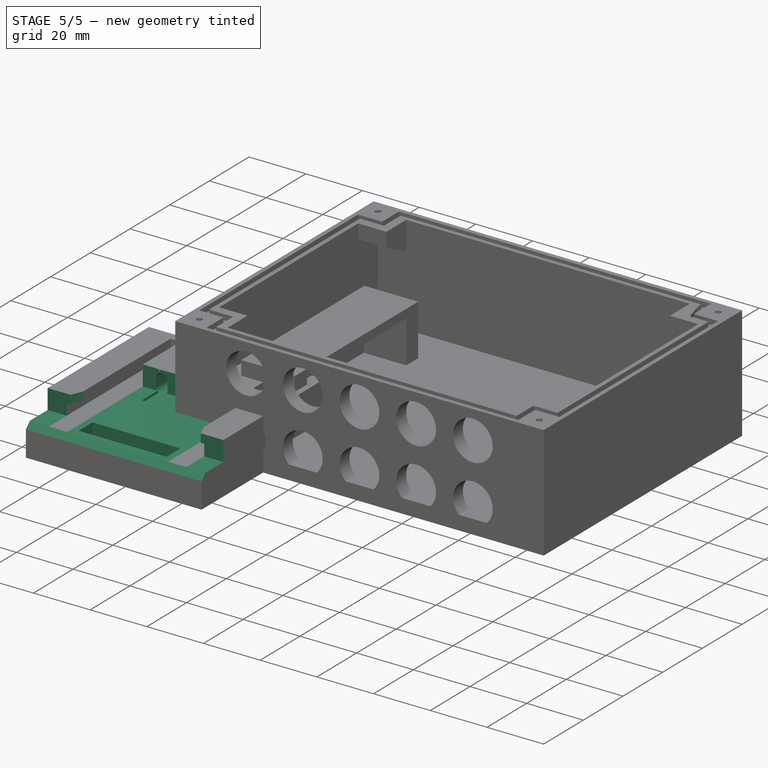
[diagram: stage 5 of 5 — iso view after this stage's code; geometry added in this stage tinted green]
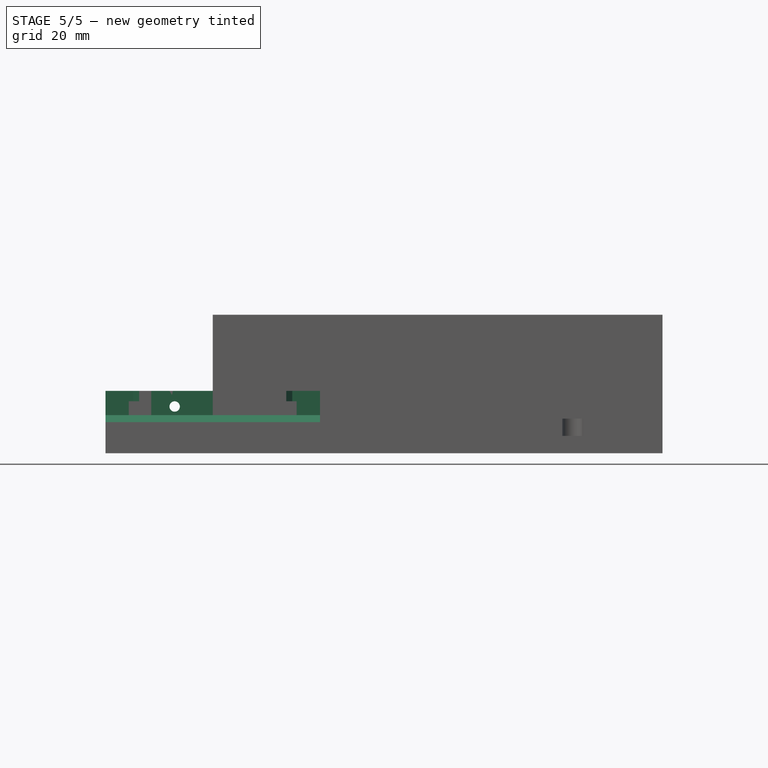
[diagram: stage 5 of 5 — front view after this stage's code; geometry added in this stage tinted green]
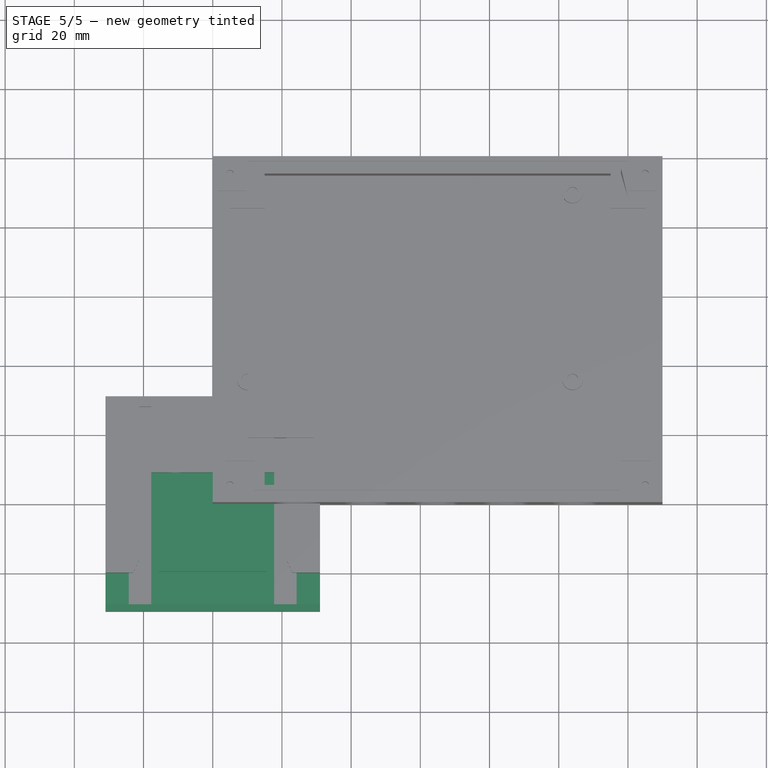
[diagram: stage 5 of 5 — top view after this stage's code; geometry added in this stage tinted green]
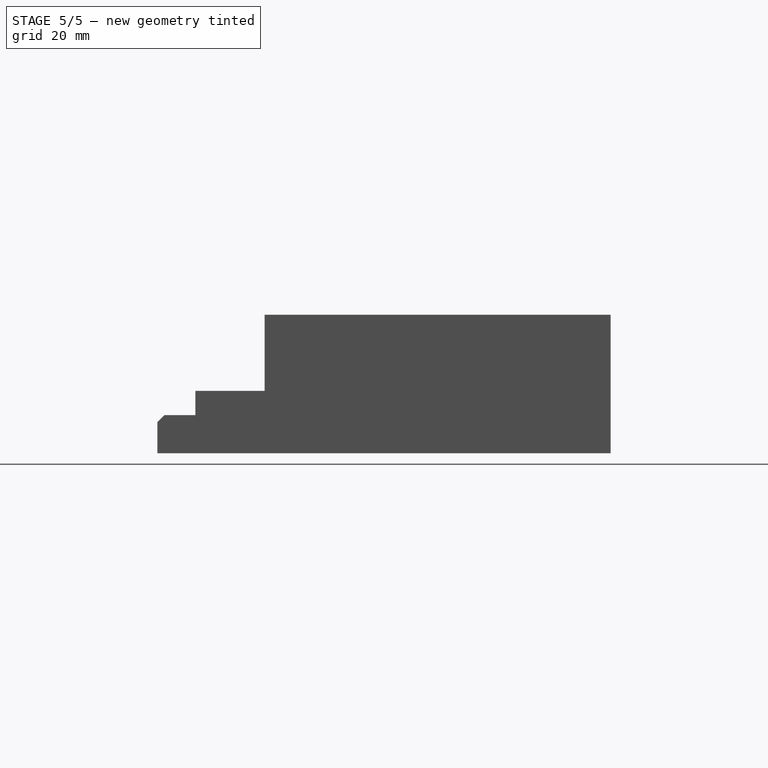
[diagram: stage 5 of 5 — right view after this stage's code; geometry added in this stage tinted green]
FEATURE [Sketcher::SketchObject] Sketch075
  MapMode = 5
  Placement = pos=(0,0,18) rot=(0,0,1;0rad)
  Support = -> [Pocket059]
  sketch-geometry (10):
    g0: LineSegment StartX=-19 StartY=-11 StartZ=0 EndX=-19 EndY=9 EndZ=0
    g1: LineSegment StartX=-19 StartY=9 StartZ=0 EndX=19 EndY=9 EndZ=0
    g2: LineSegment StartX=19 StartY=9 StartZ=0 EndX=19 EndY=-11 EndZ=0
    g3: LineSegment StartX=31 StartY=-31 StartZ=0 EndX=-31 EndY=-31 EndZ=0
    g4: LineSegment StartX=-19 StartY=-11 StartZ=0 EndX=-23 EndY=-20 EndZ=0
    g5: LineSegment StartX=-23 StartY=-20 StartZ=0 EndX=-31 EndY=-20 EndZ=0
    g6: LineSegment StartX=-31 StartY=-20 StartZ=0 EndX=-31 EndY=-31 EndZ=0
    g7: LineSegment StartX=19 StartY=-11 StartZ=0 EndX=23 EndY=-20 EndZ=0
    g8: LineSegment StartX=23 StartY=-20 StartZ=0 EndX=31 EndY=-20 EndZ=0
    g9: LineSegment StartX=31 StartY=-20 StartZ=0 EndX=31 EndY=-31 EndZ=0
  constraints (25):
    c: Coincident(g0,g1)
    c: Coincident(g1,g2)
    c: Vertical(g2)
    c: Symmetric(g0,g1,g-2)
    c: Symmetric(g0,g2,g-2)
    c: Symmetric(g3,g3,g-2)
    c: DistanceX(g0,g1) = 38
    c: DistanceX(g3,g3) = 62
    c: DistanceY(g3,g2) = 20
    c: DistanceY(g-1,g1) = 9
    c: DistanceY(g3,g-1) = 31
    c: Coincident(g4,g5)
    c: Coincident(g5,g6)
    c: Coincident(g7,g8)
    c: Coincident(g8,g9)
    c: Coincident(g4,g0)
    c: Coincident(g7,g2)
    c: Coincident(g6,g3)
    c: Coincident(g9,g3)
    c: Horizontal(g8)
    c: Vertical(g9)
    c: Symmetric(g8,g5,g-2)
    c: Symmetric(g4,g7,g-2)
    c: DistanceY(g3,g8) = 11
    c: DistanceX(g7,g8) = 8
FEATURE [PartDesign::Pocket] Pocket060
  AllowMultiFace = false
  BaseFeature = -> Pocket059
  Length = 7
  Length2 = 100
  Profile = -> Sketch075
  Type = 0
FEATURE [Sketcher::SketchObject] Sketch076
  MapMode = 5
  Placement = pos=(0,0,18) rot=(0,0,1;0rad)
  Support = -> [Pocket060]
  sketch-geometry (12):
    g0: LineSegment StartX=-15.5 StartY=-19.5 StartZ=0 EndX=15.5 EndY=-19.5 EndZ=0
    g1: LineSegment StartX=15.5 StartY=-19.5 StartZ=0 EndX=15.5 EndY=-26.5 EndZ=0
    g2: LineSegment StartX=15.5 StartY=-26.5 StartZ=0 EndX=-15.5 EndY=-26.5 EndZ=0
    g3: LineSegment StartX=-15.5 StartY=-26.5 StartZ=0 EndX=-15.5 EndY=-19.5 EndZ=0
    g4: LineSegment StartX=-12.5 StartY=9 StartZ=0 EndX=-11.5 EndY=9 EndZ=0
    g5: LineSegment StartX=-11.5 StartY=9 StartZ=0 EndX=-11.5 EndY=1 EndZ=0
    g6: LineSegment StartX=-11.5 StartY=1 StartZ=0 EndX=-12.5 EndY=1 EndZ=0
    g7: LineSegment StartX=-12.5 StartY=1 StartZ=0 EndX=-12.5 EndY=9 EndZ=0
    g8: LineSegment StartX=11.5 StartY=9 StartZ=0 EndX=12.5 EndY=9 EndZ=0
    g9: LineSegment StartX=12.5 StartY=9 StartZ=0 EndX=12.5 EndY=1 EndZ=0
    g10: LineSegment StartX=12.5 StartY=1 StartZ=0 EndX=11.5 EndY=1 EndZ=0
    g11: LineSegment StartX=11.5 StartY=1 StartZ=0 EndX=11.5 EndY=9 EndZ=0
  constraints (30):
    c: Coincident(g0,g1)
    c: Coincident(g1,g2)
    c: Coincident(g2,g3)
    c: Coincident(g3,g0)
    c: Symmetric(g0,g0,g-2)
    c: Symmetric(g1,g2,g-2)
    c: Vertical(g1)
    c: DistanceX(g0,g0) = 31
    c: DistanceY(g1,g0) = 7
    c: DistanceY(g1,g-1) = 26.5
    c: Coincident(g4,g5)
    c: Coincident(g5,g6)
    c: Coincident(g6,g7)
    c: Coincident(g7,g4)
    c: Horizontal(g4)
    c: Horizontal(g6)
    c: Vertical(g5)
    c: Vertical(g7)
    c: Coincident(g8,g9)
    c: Coincident(g9,g10)
    c: Coincident(g10,g11)
    c: Coincident(g11,g8)
    c: Symmetric(g4,g8,g-2)
    c: Symmetric(g4,g8,g-2)
    c: Symmetric(g5,g10,g-2)
    c: Symmetric(g6,g9,g-2)
    c: DistanceY(g6,g4) = 8
    c: DistanceY(g-1,g4) = 9
    c: DistanceX(g4,g4) = 1
    c: DistanceX(g4,g8) = 23
FEATURE [Sketcher::SketchObject] Sketch077
  MapMode = 5
  Placement = pos=(0,31,0) rot=(0,0.707107,0.707107;3.14159rad)
  sketch-geometry (2):
    g0: Circle CenterX=-11 CenterY=13.5 CenterZ=0 NormalX=0 NormalY=0 NormalZ=1 AngleXU=0 Radius=1.5
    g1: Circle CenterX=11 CenterY=13.5 CenterZ=0 NormalX=0 NormalY=0 NormalZ=1 AngleXU=0 Radius=1.5
  constraints (5):
    c: Symmetric(g0,g1,g-2)
    c: DistanceX(g0,g1) = 22
    c: Diameter(g1) = 3
    c: Equal(g0,g1)
    c: DistanceY(g-1,g1) = 13.5
FEATURE [PartDesign::Pocket] Pocket062
  AllowMultiFace = false
  BaseFeature = -> Pocket060
  Length = 22
  Length2 = 100
  Profile = -> Sketch077
  Type = 0
FEATURE [Sketcher::SketchObject] Sketch081
  MapMode = 5
  Placement = pos=(0,9,0) rot=(1,0,0;1.5708rad)
  Support = -> [Pocket062]
  sketch-geometry (8):
    g0: ArcOfCircle CenterX=-11 CenterY=15 CenterZ=0 NormalX=0 NormalY=0 NormalZ=1 AngleXU=0 Radius=2 StartAngle=5e-16 EndAngle=3.14159
    g1: ArcOfCircle CenterX=-11 CenterY=12 CenterZ=0 NormalX=0 NormalY=0 NormalZ=1 AngleXU=0 Radius=2 StartAngle=3.14159 EndAngle=6.28319
    g2: LineSegment StartX=-13 StartY=15 StartZ=0 EndX=-13 EndY=12 EndZ=0
    g3: LineSegment StartX=-9 StartY=15 StartZ=0 EndX=-9 EndY=12 EndZ=0
    g4: ArcOfCircle CenterX=11 CenterY=15 CenterZ=0 NormalX=0 NormalY=0 NormalZ=1 AngleXU=0 Radius=2 StartAngle=0 EndAngle=3.14159
    g5: ArcOfCircle CenterX=11 CenterY=12 CenterZ=0 NormalX=0 NormalY=0 NormalZ=1 AngleXU=0 Radius=2 StartAngle=3.14159 EndAngle=6.28319
    g6: LineSegment StartX=9 StartY=15 StartZ=0 EndX=9 EndY=12 EndZ=0
    g7: LineSegment StartX=13 StartY=15 StartZ=0 EndX=13 EndY=12 EndZ=0
  constraints (18):
    c: Tangent(g0,g3) = 1.5708
    c: Tangent(g0,g2) = -1.5708
    c: Tangent(g2,g1) = -1.5708
    c: Tangent(g3,g1) = 1.5708
    c: Vertical(g2)
    c: Equal(g0,g1)
    c: Tangent(g4,g7) = 1.5708
    c: Tangent(g4,g6) = -1.5708
    c: Tangent(g6,g5) = -1.5708
    c: Tangent(g7,g5) = 1.5708
    c: Vertical(g6)
    c: Symmetric(g0,g4,g-2)
    c: Symmetric(g1,g5,g-2)
    c: Equal(g0,g4)
    c: Diameter(g0) = 4
    c: DistanceY(g1,g0) = 3
    c: DistanceX(g0,g4) = 22
    c: DistanceY(g-1,g1) = 12
FEATURE [PartDesign::Pocket] Pocket067
  AllowMultiFace = false
  BaseFeature = -> Pocket062
  Length = 10
  Length2 = 100
  Profile = -> Sketch081
  Type = 0
FEATURE [PartDesign::Pocket] Pocket065
  AllowMultiFace = false
  BaseFeature = -> Pocket067
  Length = 11
  Length2 = 100
  Profile = -> Sketch076
  Type = 0
FEATURE [Sketcher::SketchObject] Sketch080
  MapMode = 5
  Placement = pos=(31,0,0) rot=(0.57735,0.57735,0.57735;2.0944rad)
  Support = -> [Pocket065]
  sketch-geometry (3):
    g0: LineSegment StartX=-31 StartY=11 StartZ=0 EndX=-31 EndY=9 EndZ=0
    g1: LineSegment StartX=-31 StartY=9 StartZ=0 EndX=-29 EndY=11 EndZ=0
    g2: LineSegment StartX=-29 StartY=11 StartZ=0 EndX=-31 EndY=11 EndZ=0
  constraints (9):
    c: Coincident(g0,g1)
    c: Coincident(g1,g2)
    c: Coincident(g2,g0)
    c: Vertical(g0)
    c: Horizontal(g2)
    c: DistanceX(g0,g1) = 2
    c: DistanceY(g0,g0) = 2
    c: DistanceX(g0,g-1) = 31
    c: DistanceY(g-1,g0) = 11
FEATURE [PartDesign::Pocket] Pocket066
  AllowMultiFace = false
  BaseFeature = -> Pocket065
  Length = 5
  Length2 = 100
  Profile = -> Sketch080
  Type = 1
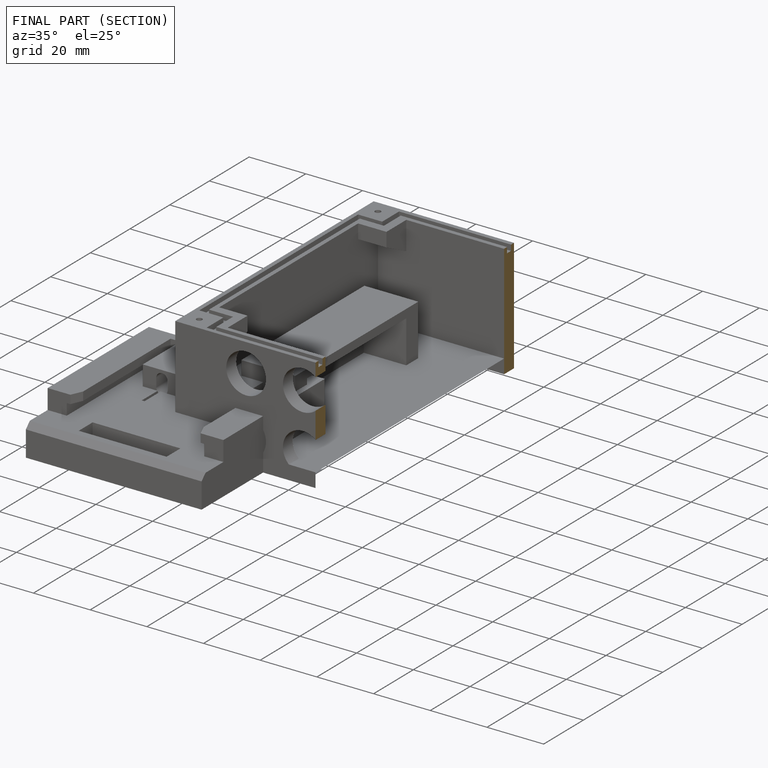
[diagram: finished part — half-section view (interior)]
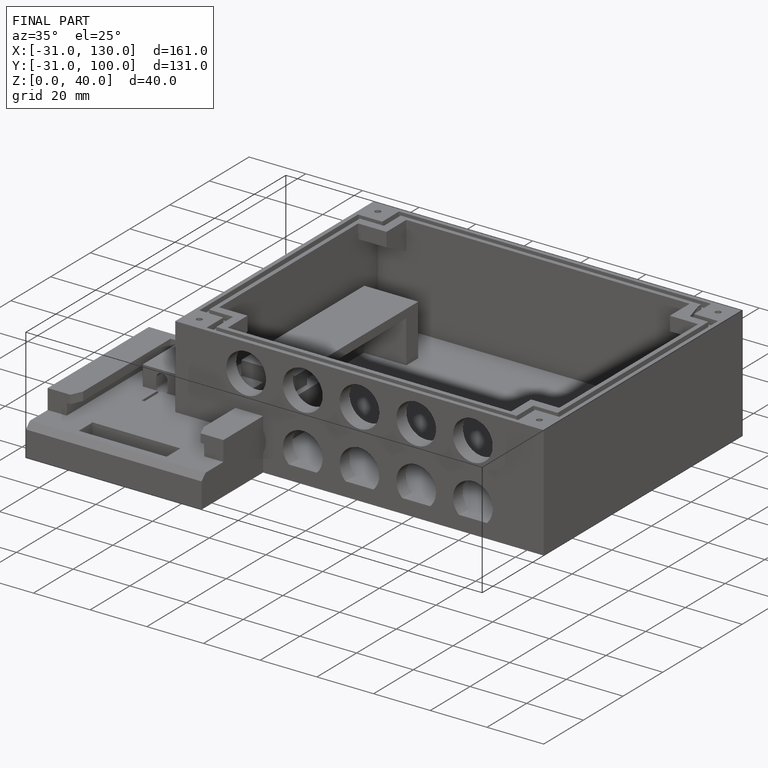
[diagram: finished part — iso view with bounding-box wireframe]
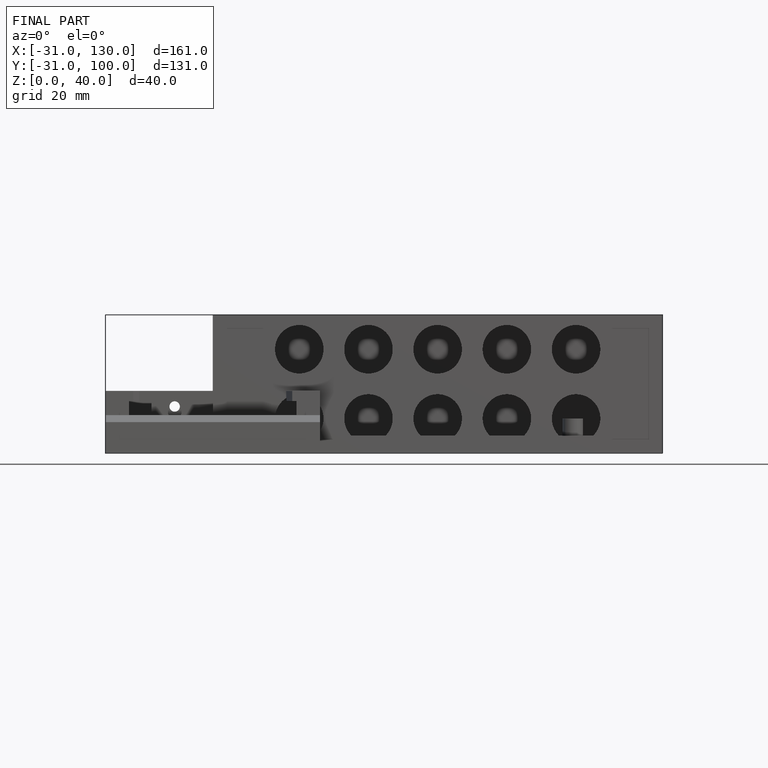
[diagram: finished part — front view with bounding-box wireframe]
